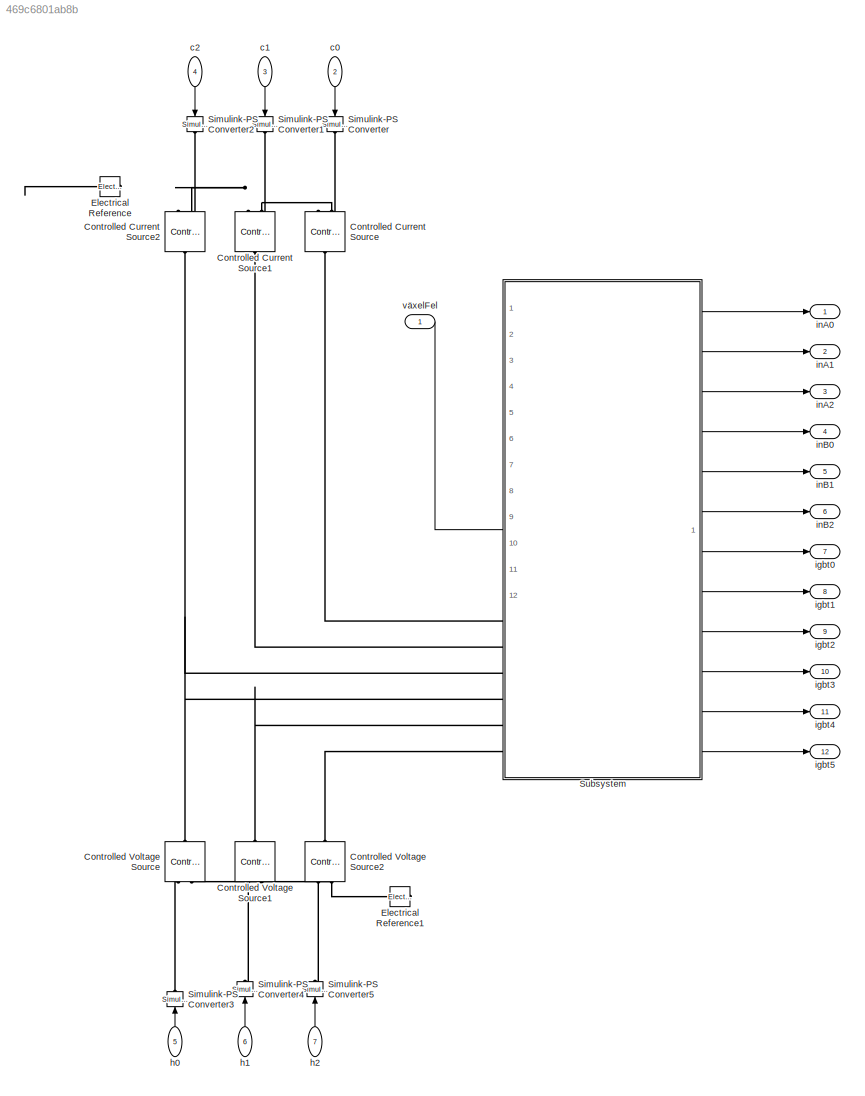
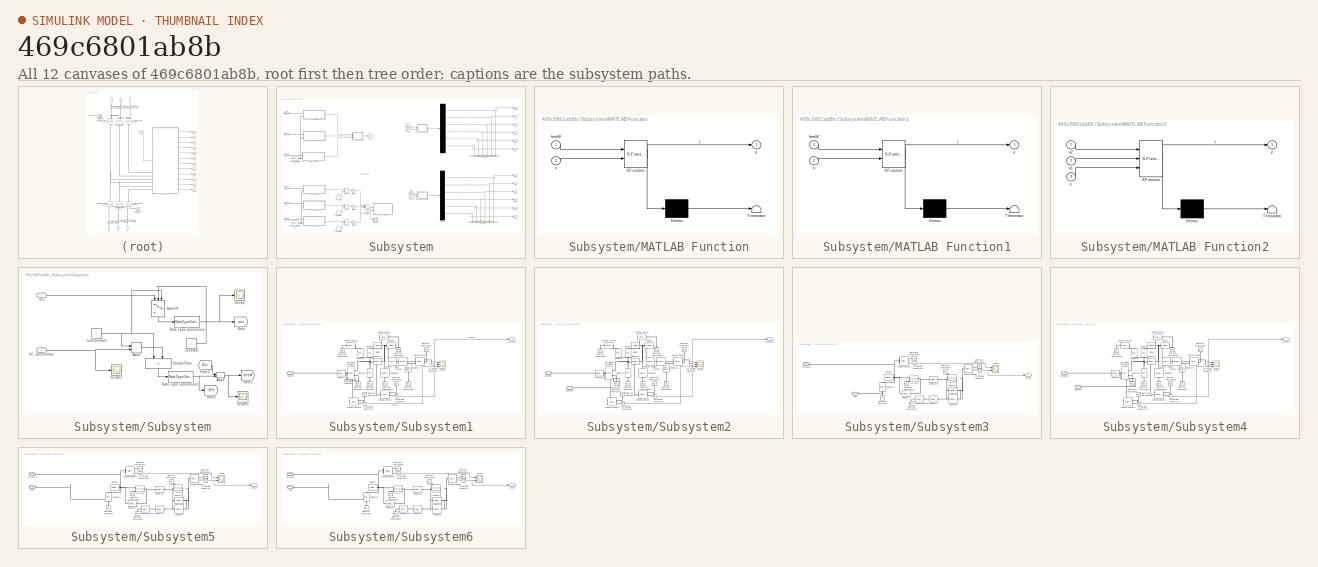
[diagram: thumbnail index - all 12 canvases of the model, root first then tree order]
MODEL slx_469c6801ab8b
KIND model
CONFIG AbsTol = auto
CONFIG EnableMultiTasking = off
CONFIG FixedStep = auto
CONFIG MaxStep = auto
CONFIG MinStep = auto
CONFIG RelTol = 1e-3
CONFIG SampleTimeConstraint = Unconstrained
CONFIG SolverName = VariableStepAuto
CONFIG StartTime = 0.0
CONFIG StopTime = 0.1
WORKSPACE source: mxarray member
WORKSPACE intervall = 300
WORKSPACE intervall2 = 1
WORKSPACE intervall3 = 1
WORKSPACE timeTTT: Simulink.Signal (value not decoded)
BLOCK [Reference] Controlled Current Source  REF=fl_lib/Electrical/Electrical Sources/Controlled Current
Source
  NameLocation = left
  Ports = [0, 0, 0, 0, 0, 1, 2]
  SourceBlock = fl_lib/Electrical/Electrical Sources/Controlled Current\nSource
  SourceProductBaseCode = SS
  SourceType = Controlled Current\nSource
BLOCK [Reference] Controlled Current Source1  REF=fl_lib/Electrical/Electrical Sources/Controlled Current
Source
  NameLocation = left
  Ports = [0, 0, 0, 0, 0, 1, 2]
  SourceBlock = fl_lib/Electrical/Electrical Sources/Controlled Current\nSource
  SourceProductBaseCode = SS
  SourceType = Controlled Current\nSource
BLOCK [Reference] Controlled Current Source2  REF=fl_lib/Electrical/Electrical Sources/Controlled Current
Source
  NameLocation = left
  Ports = [0, 0, 0, 0, 0, 1, 2]
  SourceBlock = fl_lib/Electrical/Electrical Sources/Controlled Current\nSource
  SourceProductBaseCode = SS
  SourceType = Controlled Current\nSource
BLOCK [Reference] Controlled Voltage Source  REF=fl_lib/Electrical/Electrical Sources/Controlled Voltage
Source
  NameLocation = right
  Ports = [0, 0, 0, 0, 0, 1, 2]
  SourceBlock = fl_lib/Electrical/Electrical Sources/Controlled Voltage\nSource
  SourceProductBaseCode = SS
  SourceType = Controlled Voltage\nSource
BLOCK [Reference] Controlled Voltage Source1  REF=fl_lib/Electrical/Electrical Sources/Controlled Voltage
Source
  NameLocation = right
  Ports = [0, 0, 0, 0, 0, 1, 2]
  SourceBlock = fl_lib/Electrical/Electrical Sources/Controlled Voltage\nSource
  SourceProductBaseCode = SS
  SourceType = Controlled Voltage\nSource
BLOCK [Reference] Controlled Voltage Source2  REF=fl_lib/Electrical/Electrical Sources/Controlled Voltage
Source
  NameLocation = right
  Ports = [0, 0, 0, 0, 0, 1, 2]
  SourceBlock = fl_lib/Electrical/Electrical Sources/Controlled Voltage\nSource
  SourceProductBaseCode = SS
  SourceType = Controlled Voltage\nSource
BLOCK [Reference] Electrical Reference  REF=fl_lib/Electrical/Electrical Elements/Electrical Reference
  Ports = [0, 0, 0, 0, 0, 1]
  SourceBlock = fl_lib/Electrical/Electrical Elements/Electrical Reference
  SourceProductBaseCode = SS
  SourceType = Electrical Reference
BLOCK [Reference] Electrical Reference1  REF=fl_lib/Electrical/Electrical Elements/Electrical Reference
  NameLocation = top
  Ports = [0, 0, 0, 0, 0, 1]
  SourceBlock = fl_lib/Electrical/Electrical Elements/Electrical Reference
  SourceProductBaseCode = SS
  SourceType = Electrical Reference
BLOCK [Reference] Simulink-PS Converter  REF=nesl_utility/Simulink-PS
Converter
  NameLocation = left
  Ports = [1, 0, 0, 0, 0, 0, 1]
  SourceBlock = nesl_utility/Simulink-PS\nConverter
  SourceProductBaseCode = SS
  SourceType = Simulink-PS\nConverter
BLOCK [Reference] Simulink-PS Converter1  REF=nesl_utility/Simulink-PS
Converter
  NameLocation = left
  Ports = [1, 0, 0, 0, 0, 0, 1]
  SourceBlock = nesl_utility/Simulink-PS\nConverter
  SourceProductBaseCode = SS
  SourceType = Simulink-PS\nConverter
BLOCK [Reference] Simulink-PS Converter2  REF=nesl_utility/Simulink-PS
Converter
  NameLocation = left
  Ports = [1, 0, 0, 0, 0, 0, 1]
  SourceBlock = nesl_utility/Simulink-PS\nConverter
  SourceProductBaseCode = SS
  SourceType = Simulink-PS\nConverter
BLOCK [Reference] Simulink-PS Converter3  REF=nesl_utility/Simulink-PS
Converter
  NameLocation = right
  Ports = [1, 0, 0, 0, 0, 0, 1]
  SourceBlock = nesl_utility/Simulink-PS\nConverter
  SourceProductBaseCode = SS
  SourceType = Simulink-PS\nConverter
BLOCK [Reference] Simulink-PS Converter4  REF=nesl_utility/Simulink-PS
Converter
  NameLocation = right
  Ports = [1, 0, 0, 0, 0, 0, 1]
  SourceBlock = nesl_utility/Simulink-PS\nConverter
  SourceProductBaseCode = SS
  SourceType = Simulink-PS\nConverter
BLOCK [Reference] Simulink-PS Converter5  REF=nesl_utility/Simulink-PS
Converter
  NameLocation = right
  Ports = [1, 0, 0, 0, 0, 0, 1]
  SourceBlock = nesl_utility/Simulink-PS\nConverter
  SourceProductBaseCode = SS
  SourceType = Simulink-PS\nConverter
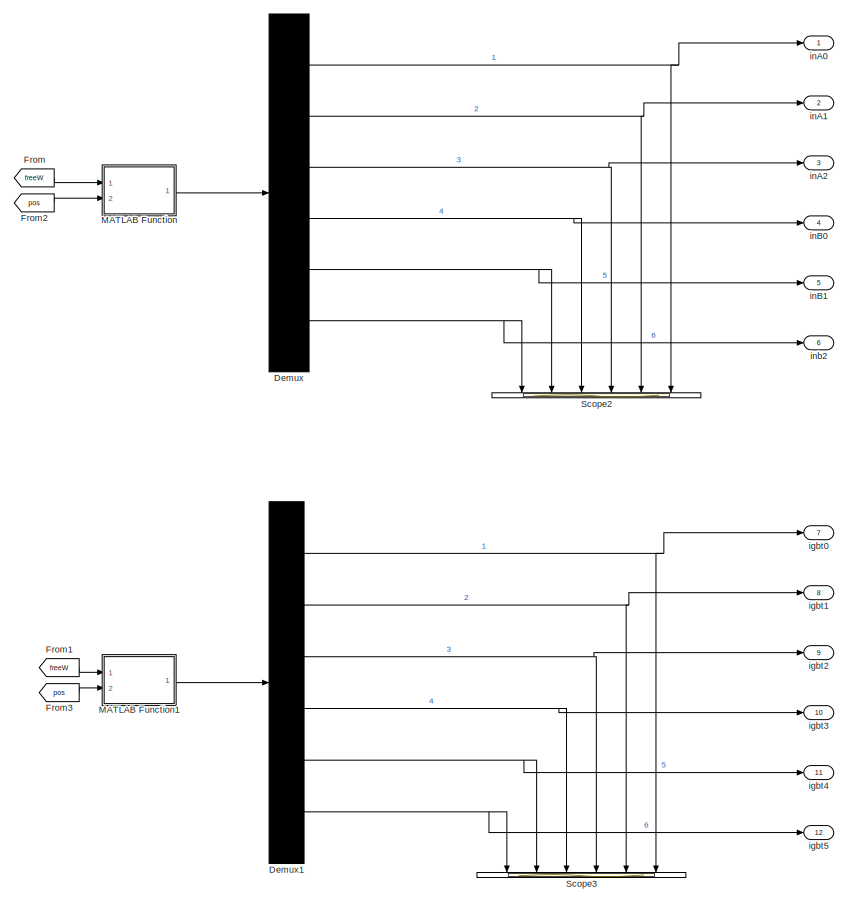
[diagram: Subsystem - part 1/2, right side, full height]
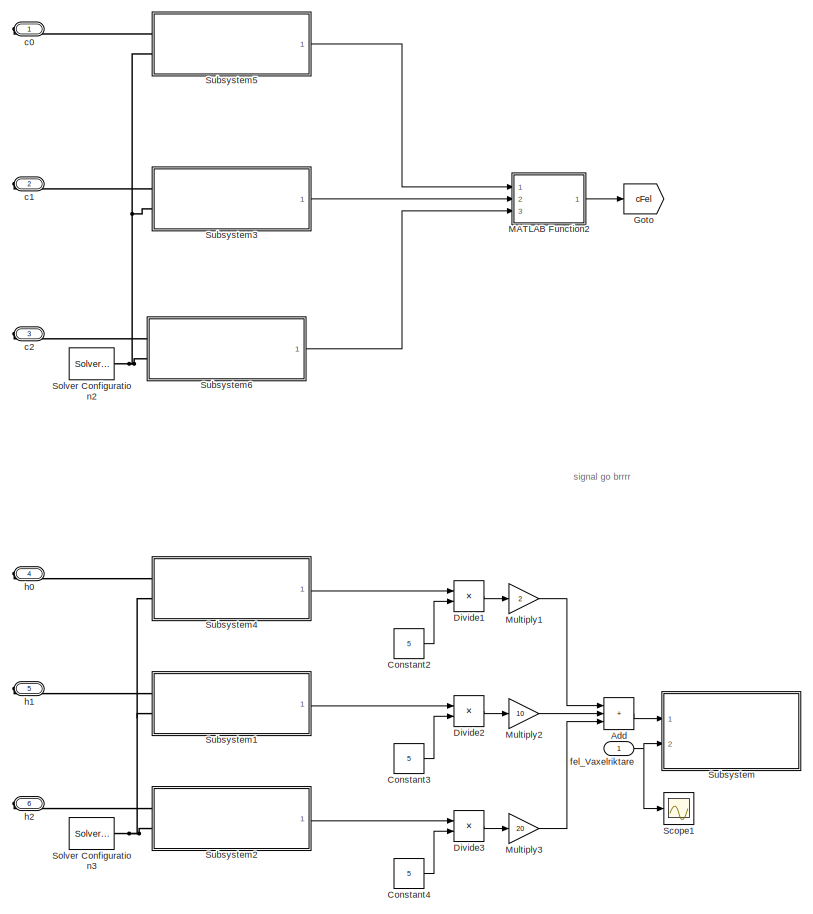
[diagram: Subsystem - part 2/2, left side, full height]
BLOCK [SubSystem] Subsystem
  NameLocation = top
  PortSchema = {"entries":[{"content":{"sides":[{"content":{"connectorIds":["Out1","Out2","Out3","Out4","Out5","Out6","Out7","Out8","Out9","Out10","Out11","Out12"]},"type":"ConnectorPlacement.EquallySpacedRectSide","uuid":"493f0f77-0281-47b8-a20c-27da5d574e1e"},{"content":{"connectorIds":["In1","RConn1","RConn2","RConn3","RConn4","RConn5","RConn6"],"side":"RIGHT"},"type":"ConnectorPlacement.EquallySpacedRectSide...<+518ch>
  Ports = [1, 12, 0, 0, 0, 0, 6]
  RequestExecContextInheritance = off
BLOCK [Sum] Subsystem/Add
  IconShape = rectangular
  Inputs = +++
  Ports = [3, 1]
BLOCK [Constant] Subsystem/Constant2
  Value = 5
BLOCK [Constant] Subsystem/Constant3
  Value = 5
BLOCK [Constant] Subsystem/Constant4
  Value = 5
BLOCK [Demux] Subsystem/Demux
  DisplayOption = none
  Outputs = 6
  Ports = [1, 6]
BLOCK [Demux] Subsystem/Demux1
  DisplayOption = none
  Outputs = 6
  Ports = [1, 6]
BLOCK [Product] Subsystem/Divide1
  Inputs = */
  Ports = [2, 1]
BLOCK [Product] Subsystem/Divide2
  Inputs = */
  Ports = [2, 1]
BLOCK [Product] Subsystem/Divide3
  Inputs = */
  Ports = [2, 1]
BLOCK [From] Subsystem/From
  GotoTag = freeW
  NameLocation = top
  TagVisibility = global
BLOCK [From] Subsystem/From1
  GotoTag = freeW
  TagVisibility = global
BLOCK [From] Subsystem/From2
  GotoTag = pos
  TagVisibility = global
BLOCK [From] Subsystem/From3
  GotoTag = pos
  TagVisibility = global
BLOCK [Goto] Subsystem/Goto
  GotoTag = cFel
  TagVisibility = global
BLOCK [SubSystem] Subsystem/MATLAB Function
  ErrorFcn = Stateflow.Translate.translate
  PermitHierarchicalResolution = ExplicitOnly
  Ports = [2, 1]
  RequestExecContextInheritance = off
  SFBlockType = MATLAB Function
  TreatAsAtomicUnit = on
BLOCK [Demux] Subsystem/MATLAB Function/ Demux 
  Outputs = 1
  Ports = [1, 1]
BLOCK [S-Function] Subsystem/MATLAB Function/ SFunction 
  EnableBusSupport = on
  FunctionName = sf_sfun
  PortCounts = [2 2]
  Ports = [2, 2]
  SFcnIsStateOwnerBlock = off
  SFunctionDeploymentMode = off
  Tag = Stateflow S-Function 2
BLOCK [Terminator] Subsystem/MATLAB Function/ Terminator 
BLOCK [Inport] Subsystem/MATLAB Function/freeW
BLOCK [Inport] Subsystem/MATLAB Function/u
  Port = 2
BLOCK [Outport] Subsystem/MATLAB Function/y
  VectorParamsAs1DForOutWhenUnconnected = off
BLOCK [SubSystem] Subsystem/MATLAB Function1
  ErrorFcn = Stateflow.Translate.translate
  PermitHierarchicalResolution = ExplicitOnly
  Ports = [2, 1]
  RequestExecContextInheritance = off
  SFBlockType = MATLAB Function
  TreatAsAtomicUnit = on
BLOCK [Demux] Subsystem/MATLAB Function1/ Demux 
  Outputs = 1
  Ports = [1, 1]
BLOCK [S-Function] Subsystem/MATLAB Function1/ SFunction 
  EnableBusSupport = on
  FunctionName = sf_sfun
  PortCounts = [2 2]
  Ports = [2, 2]
  SFcnIsStateOwnerBlock = off
  SFunctionDeploymentMode = off
  Tag = Stateflow S-Function 1
BLOCK [Terminator] Subsystem/MATLAB Function1/ Terminator 
BLOCK [Inport] Subsystem/MATLAB Function1/freeW
BLOCK [Inport] Subsystem/MATLAB Function1/u
  Port = 2
BLOCK [Outport] Subsystem/MATLAB Function1/y
  VectorParamsAs1DForOutWhenUnconnected = off
BLOCK [SubSystem] Subsystem/MATLAB Function2
  ErrorFcn = Stateflow.Translate.translate
  PermitHierarchicalResolution = ExplicitOnly
  Ports = [3, 1]
  RequestExecContextInheritance = off
  SFBlockType = MATLAB Function
  TreatAsAtomicUnit = on
BLOCK [Demux] Subsystem/MATLAB Function2/ Demux 
  Outputs = 1
  Ports = [1, 1]
BLOCK [S-Function] Subsystem/MATLAB Function2/ SFunction 
  EnableBusSupport = on
  FunctionName = sf_sfun
  PortCounts = [3 2]
  Ports = [3, 2]
  SFcnIsStateOwnerBlock = off
  SFunctionDeploymentMode = off
  Tag = Stateflow S-Function 3
BLOCK [Terminator] Subsystem/MATLAB Function2/ Terminator 
BLOCK [Inport] Subsystem/MATLAB Function2/u
  Port = 3
BLOCK [Inport] Subsystem/MATLAB Function2/u1
  Port = 2
BLOCK [Inport] Subsystem/MATLAB Function2/u2
BLOCK [Outport] Subsystem/MATLAB Function2/y
BLOCK [Gain] Subsystem/Multiply1
  Gain = 2
BLOCK [Gain] Subsystem/Multiply2
  Gain = 10
BLOCK [Gain] Subsystem/Multiply3
  Gain = 20
BLOCK [Scope] Subsystem/Scope1
  Floating = off
  NumInputPorts = 1
  Ports = [1]
  ScopeSpecificationString = Simulink.scopes.TimeScopeBlockCfg('CurrentConfiguration', extmgr.ConfigurationSet(extmgr.Configuration('Core','General UI',true),extmgr.Configuration('Core','Source UI',true),extmgr.Configuration('Sources','WiredSimulink',true,'DataLoggingVariableName','ScopeData3'),extmgr.Configuration('Visuals','Time Domain',true,'SerializedDisplays',{struct('MinYLimReal','0.9','MaxYLimReal','1.1','YLabelReal','...<+1376ch>
BLOCK [Scope] Subsystem/Scope2
  Floating = off
  NameLocation = left
  NumInputPorts = 6
  Ports = [6]
  ScopeSpecificationString = Simulink.scopes.TimeScopeBlockCfg('CurrentConfiguration', extmgr.ConfigurationSet(extmgr.Configuration('Core','General UI',true),extmgr.Configuration('Core','Source UI',true),extmgr.Configuration('Sources','WiredSimulink',true,'DataLoggingVariableName','ScopeData5'),extmgr.Configuration('Visuals','Time Domain',true,'SerializedDisplays',{struct('MinYLimReal','-1.25','MaxYLimReal','11.25','YLabelRea...<+6165ch>
BLOCK [Scope] Subsystem/Scope3
  Floating = off
  NameLocation = left
  NumInputPorts = 6
  Ports = [6]
  ScopeSpecificationString = Simulink.scopes.TimeScopeBlockCfg('CurrentConfiguration', extmgr.ConfigurationSet(extmgr.Configuration('Core','General UI',true),extmgr.Configuration('Core','Source UI',true),extmgr.Configuration('Sources','WiredSimulink',true,'DataLoggingVariableName','ScopeData1'),extmgr.Configuration('Visuals','Time Domain',true),extmgr.Configuration('Tools','Plot Navigation',true),extmgr.Configuration('Tools',...<+58ch>
BLOCK [Reference] Subsystem/Solver Configuration2  REF=nesl_utility/Solver
Configuration
  Ports = [0, 0, 0, 0, 0, 0, 1]
  SourceBlock = nesl_utility/Solver\nConfiguration
  SourceProductBaseCode = SS
  SourceType = Solver\nConfiguration
BLOCK [Reference] Subsystem/Solver Configuration3  REF=nesl_utility/Solver
Configuration
  Ports = [0, 0, 0, 0, 0, 0, 1]
  SourceBlock = nesl_utility/Solver\nConfiguration
  SourceProductBaseCode = SS
  SourceType = Solver\nConfiguration
BLOCK [SubSystem] Subsystem/Subsystem
  Ports = [2]
  RequestExecContextInheritance = off
BLOCK [Sum] Subsystem/Subsystem/Add1
  IconShape = rectangular
  Ports = [2, 1]
BLOCK [Sum] Subsystem/Subsystem/Add3
  IconShape = rectangular
  Ports = [2, 1]
BLOCK [Constant] Subsystem/Subsystem/Constant
BLOCK [DataTypeConversion] Subsystem/Subsystem/Data Type Conversion
  OutDataTypeStr = int32
  RndMeth = Round
  SaturateOnIntegerOverflow = off
BLOCK [DataTypeConversion] Subsystem/Subsystem/Data Type Conversion1
  OutDataTypeStr = int32
  RndMeth = Round
  SaturateOnIntegerOverflow = off
BLOCK [From] Subsystem/Subsystem/From2
  GotoTag = cFel
  TagVisibility = global
BLOCK [Goto] Subsystem/Subsystem/Goto
  GotoTag = pos
  TagVisibility = global
BLOCK [Goto] Subsystem/Subsystem/Goto1
  GotoTag = freeW
  TagVisibility = global
BLOCK [Goto] Subsystem/Subsystem/Goto2
  GotoTag = vFel
  TagVisibility = global
BLOCK [RelationalOperator] Subsystem/Subsystem/GreaterThan
  InputSameDT = off
  NameLocation = left
  Operator = >
  OutDataTypeStr = boolean
  Ports = [2, 1]
  RndMeth = Simplest
BLOCK [Inport] Subsystem/Subsystem/In1
BLOCK [Scope] Subsystem/Subsystem/Scope
  Floating = off
  NumInputPorts = 1
  Ports = [1]
  ScopeSpecificationString = Simulink.scopes.TimeScopeBlockCfg('CurrentConfiguration', extmgr.ConfigurationSet(extmgr.Configuration('Core','General UI',true),extmgr.Configuration('Core','Source UI',true),extmgr.Configuration('Sources','WiredSimulink',true,'DataLoggingVariableName','ScopeData2'),extmgr.Configuration('Visuals','Time Domain',true,'SerializedDisplays',{struct('MinYLimReal','-0.25','MaxYLimReal','2.25','YLabelReal...<+1361ch>
BLOCK [Scope] Subsystem/Subsystem/Scope1
  Floating = off
  NumInputPorts = 1
  Ports = [1]
  ScopeSpecificationString = Simulink.scopes.TimeScopeBlockCfg('CurrentConfiguration', extmgr.ConfigurationSet(extmgr.Configuration('Core','General UI',true),extmgr.Configuration('Core','Source UI',true),extmgr.Configuration('Sources','WiredSimulink',true,'DataLoggingVariableName','ScopeData1'),extmgr.Configuration('Visuals','Time Domain',true,'SerializedDisplays',{struct('MinYLimReal','-1.00000','MaxYLimReal','1.00000','YLab...<+1363ch>
BLOCK [Scope] Subsystem/Subsystem/Scope2
  Floating = off
  NumInputPorts = 1
  Ports = [1]
  ScopeSpecificationString = Simulink.scopes.TimeScopeBlockCfg('CurrentConfiguration', extmgr.ConfigurationSet(extmgr.Configuration('Core','General UI',true),extmgr.Configuration('Core','Source UI',true),extmgr.Configuration('Sources','WiredSimulink',true,'DataLoggingVariableName','ScopeData2'),extmgr.Configuration('Visuals','Time Domain',true),extmgr.Configuration('Tools','Plot Navigation',true),extmgr.Configuration('Tools',...<+40ch>
BLOCK [Switch] Subsystem/Subsystem/Switch6
  InputSameDT = off
  NameLocation = left
  SaturateOnIntegerOverflow = off
BLOCK [Inport] Subsystem/Subsystem/fel_Vaxelriktare
  Port = 2
BLOCK [Constant] Subsystem/Subsystem/nullConstant
  Value = 0
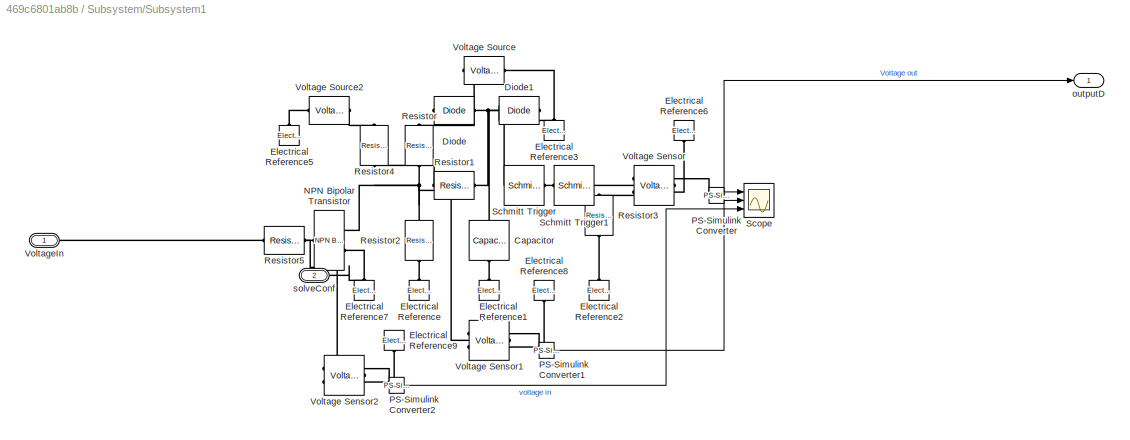
BLOCK [SubSystem] Subsystem/Subsystem1
  Ports = [0, 1, 0, 0, 0, 2]
  RequestExecContextInheritance = off
BLOCK [Reference] Subsystem/Subsystem1/Capacitor  REF=fl_lib/Electrical/Electrical Elements/Capacitor
  NameLocation = left
  Ports = [0, 0, 0, 0, 0, 1, 1]
  SourceBlock = fl_lib/Electrical/Electrical Elements/Capacitor
  SourceProductBaseCode = SS
  SourceType = Capacitor
BLOCK [Reference] Subsystem/Subsystem1/Diode  REF=ee_lib/Semiconductors &
Converters/Diode
  NameLocation = top
  Ports = [0, 0, 0, 0, 0, 1, 1]
  SourceBlock = ee_lib/Semiconductors &\nConverters/Diode
  SourceProductBaseCode = PS
  SourceType = Diode
BLOCK [Reference] Subsystem/Subsystem1/Diode1  REF=ee_lib/Semiconductors &
Converters/Diode
  NameLocation = top
  Ports = [0, 0, 0, 0, 0, 1, 1]
  SourceBlock = ee_lib/Semiconductors &\nConverters/Diode
  SourceProductBaseCode = PS
  SourceType = Diode
BLOCK [Reference] Subsystem/Subsystem1/Electrical Reference  REF=fl_lib/Electrical/Electrical Elements/Electrical Reference
  NameLocation = right
  Ports = [0, 0, 0, 0, 0, 1]
  SourceBlock = fl_lib/Electrical/Electrical Elements/Electrical Reference
  SourceProductBaseCode = SS
  SourceType = Electrical Reference
BLOCK [Reference] Subsystem/Subsystem1/Electrical Reference1  REF=fl_lib/Electrical/Electrical Elements/Electrical Reference
  NameLocation = right
  Ports = [0, 0, 0, 0, 0, 1]
  SourceBlock = fl_lib/Electrical/Electrical Elements/Electrical Reference
  SourceProductBaseCode = SS
  SourceType = Electrical Reference
BLOCK [Reference] Subsystem/Subsystem1/Electrical Reference2  REF=fl_lib/Electrical/Electrical Elements/Electrical Reference
  NameLocation = right
  Ports = [0, 0, 0, 0, 0, 1]
  SourceBlock = fl_lib/Electrical/Electrical Elements/Electrical Reference
  SourceProductBaseCode = SS
  SourceType = Electrical Reference
BLOCK [Reference] Subsystem/Subsystem1/Electrical Reference3  REF=fl_lib/Electrical/Electrical Elements/Electrical Reference
  NameLocation = right
  Ports = [0, 0, 0, 0, 0, 1]
  SourceBlock = fl_lib/Electrical/Electrical Elements/Electrical Reference
  SourceProductBaseCode = SS
  SourceType = Electrical Reference
BLOCK [Reference] Subsystem/Subsystem1/Electrical Reference5  REF=fl_lib/Electrical/Electrical Elements/Electrical Reference
  NameLocation = right
  Ports = [0, 0, 0, 0, 0, 1]
  SourceBlock = fl_lib/Electrical/Electrical Elements/Electrical Reference
  SourceProductBaseCode = SS
  SourceType = Electrical Reference
BLOCK [Reference] Subsystem/Subsystem1/Electrical Reference6  REF=fl_lib/Electrical/Electrical Elements/Electrical Reference
  NameLocation = left
  Ports = [0, 0, 0, 0, 0, 1]
  SourceBlock = fl_lib/Electrical/Electrical Elements/Electrical Reference
  SourceProductBaseCode = SS
  SourceType = Electrical Reference
BLOCK [Reference] Subsystem/Subsystem1/Electrical Reference7  REF=fl_lib/Electrical/Electrical Elements/Electrical Reference
  NameLocation = right
  Ports = [0, 0, 0, 0, 0, 1]
  SourceBlock = fl_lib/Electrical/Electrical Elements/Electrical Reference
  SourceProductBaseCode = SS
  SourceType = Electrical Reference
BLOCK [Reference] Subsystem/Subsystem1/Electrical Reference8  REF=fl_lib/Electrical/Electrical Elements/Electrical Reference
  NameLocation = left
  Ports = [0, 0, 0, 0, 0, 1]
  SourceBlock = fl_lib/Electrical/Electrical Elements/Electrical Reference
  SourceProductBaseCode = SS
  SourceType = Electrical Reference
BLOCK [Reference] Subsystem/Subsystem1/Electrical Reference9  REF=fl_lib/Electrical/Electrical Elements/Electrical Reference
  NameLocation = left
  Ports = [0, 0, 0, 0, 0, 1]
  SourceBlock = fl_lib/Electrical/Electrical Elements/Electrical Reference
  SourceProductBaseCode = SS
  SourceType = Electrical Reference
BLOCK [Reference] Subsystem/Subsystem1/NPN Bipolar Transistor  REF=ee_lib/Semiconductors &
Converters/NPN Bipolar
Transistor
  Ports = [0, 0, 0, 0, 0, 1, 2]
  SourceBlock = ee_lib/Semiconductors &\nConverters/NPN Bipolar\nTransistor
  SourceProductBaseCode = PS
  SourceType = NPN Bipolar\nTransistor
BLOCK [Reference] Subsystem/Subsystem1/PS-Simulink Converter  REF=nesl_utility/PS-Simulink
Converter
  Ports = [0, 1, 0, 0, 0, 1]
  SourceBlock = nesl_utility/PS-Simulink\nConverter
  SourceProductBaseCode = SS
  SourceType = PS-Simulink\nConverter
BLOCK [Reference] Subsystem/Subsystem1/PS-Simulink Converter1  REF=nesl_utility/PS-Simulink
Converter
  Ports = [0, 1, 0, 0, 0, 1]
  SourceBlock = nesl_utility/PS-Simulink\nConverter
  SourceProductBaseCode = SS
  SourceType = PS-Simulink\nConverter
BLOCK [Reference] Subsystem/Subsystem1/PS-Simulink Converter2  REF=nesl_utility/PS-Simulink
Converter
  Ports = [0, 1, 0, 0, 0, 1]
  SourceBlock = nesl_utility/PS-Simulink\nConverter
  SourceProductBaseCode = SS
  SourceType = PS-Simulink\nConverter
BLOCK [Reference] Subsystem/Subsystem1/Resistor  REF=fl_lib/Electrical/Electrical Elements/Resistor
  NameLocation = left
  Ports = [0, 0, 0, 0, 0, 1, 1]
  SourceBlock = fl_lib/Electrical/Electrical Elements/Resistor
  SourceProductBaseCode = SS
  SourceType = Resistor
BLOCK [Reference] Subsystem/Subsystem1/Resistor1  REF=fl_lib/Electrical/Electrical Elements/Resistor
  Ports = [0, 0, 0, 0, 0, 1, 1]
  SourceBlock = fl_lib/Electrical/Electrical Elements/Resistor
  SourceProductBaseCode = SS
  SourceType = Resistor
BLOCK [Reference] Subsystem/Subsystem1/Resistor2  REF=fl_lib/Electrical/Electrical Elements/Resistor
  NameLocation = left
  Ports = [0, 0, 0, 0, 0, 1, 1]
  SourceBlock = fl_lib/Electrical/Electrical Elements/Resistor
  SourceProductBaseCode = SS
  SourceType = Resistor
BLOCK [Reference] Subsystem/Subsystem1/Resistor3  REF=fl_lib/Electrical/Electrical Elements/Resistor
  NameLocation = left
  Ports = [0, 0, 0, 0, 0, 1, 1]
  SourceBlock = fl_lib/Electrical/Electrical Elements/Resistor
  SourceProductBaseCode = SS
  SourceType = Resistor
BLOCK [Reference] Subsystem/Subsystem1/Resistor4  REF=fl_lib/Electrical/Electrical Elements/Resistor
  NameLocation = left
  Ports = [0, 0, 0, 0, 0, 1, 1]
  SourceBlock = fl_lib/Electrical/Electrical Elements/Resistor
  SourceProductBaseCode = SS
  SourceType = Resistor
BLOCK [Reference] Subsystem/Subsystem1/Resistor5  REF=fl_lib/Electrical/Electrical Elements/Resistor
  Ports = [0, 0, 0, 0, 0, 1, 1]
  SourceBlock = fl_lib/Electrical/Electrical Elements/Resistor
  SourceProductBaseCode = SS
  SourceType = Resistor
BLOCK [Reference] Subsystem/Subsystem1/Schmitt Trigger  REF=ee_lib/Integrated Circuits/Logic/Schmitt Trigger
  Ports = [0, 0, 0, 0, 0, 1, 1]
  SourceBlock = ee_lib/Integrated Circuits/Logic/Schmitt Trigger
  SourceProductBaseCode = PS
  SourceType = Schmitt Trigger
BLOCK [Reference] Subsystem/Subsystem1/Schmitt Trigger1  REF=ee_lib/Integrated Circuits/Logic/Schmitt Trigger
  Ports = [0, 0, 0, 0, 0, 1, 1]
  SourceBlock = ee_lib/Integrated Circuits/Logic/Schmitt Trigger
  SourceProductBaseCode = PS
  SourceType = Schmitt Trigger
BLOCK [Scope] Subsystem/Subsystem1/Scope
  Floating = off
  NumInputPorts = 3
  Ports = [3]
  ScopeSpecificationString = Simulink.scopes.TimeScopeBlockCfg('CurrentConfiguration', extmgr.ConfigurationSet(extmgr.Configuration('Core','General UI',true),extmgr.Configuration('Core','Source UI',true),extmgr.Configuration('Sources','WiredSimulink',true,'DataLoggingVariableName','ScopeData1'),extmgr.Configuration('Visuals','Time Domain',true,'SerializedDisplays',{struct('MinYLimReal','-1.00000','MaxYLimReal','1.00000','YLab...<+2771ch>
BLOCK [Reference] Subsystem/Subsystem1/Voltage Sensor  REF=fl_lib/Electrical/Electrical Sensors/Voltage Sensor
  NameLocation = top
  Ports = [0, 0, 0, 0, 0, 1, 2]
  SourceBlock = fl_lib/Electrical/Electrical Sensors/Voltage Sensor
  SourceProductBaseCode = SS
  SourceType = Voltage Sensor
BLOCK [Reference] Subsystem/Subsystem1/Voltage Sensor1  REF=fl_lib/Electrical/Electrical Sensors/Voltage Sensor
  NameLocation = top
  Ports = [0, 0, 0, 0, 0, 1, 2]
  SourceBlock = fl_lib/Electrical/Electrical Sensors/Voltage Sensor
  SourceProductBaseCode = SS
  SourceType = Voltage Sensor
BLOCK [Reference] Subsystem/Subsystem1/Voltage Sensor2  REF=fl_lib/Electrical/Electrical Sensors/Voltage Sensor
  NameLocation = top
  Ports = [0, 0, 0, 0, 0, 1, 2]
  SourceBlock = fl_lib/Electrical/Electrical Sensors/Voltage Sensor
  SourceProductBaseCode = SS
  SourceType = Voltage Sensor
BLOCK [Reference] Subsystem/Subsystem1/Voltage Source  REF=ee_lib/Sources/Voltage Source
  NameLocation = top
  Ports = [0, 0, 0, 0, 0, 1, 1]
  SourceBlock = ee_lib/Sources/Voltage Source
  SourceProductBaseCode = PS
  SourceType = Voltage Source
BLOCK [Reference] Subsystem/Subsystem1/Voltage Source2  REF=ee_lib/Sources/Voltage Source
  Ports = [0, 0, 0, 0, 0, 1, 1]
  SourceBlock = ee_lib/Sources/Voltage Source
  SourceProductBaseCode = PS
  SourceType = Voltage Source
BLOCK [PMIOPort] Subsystem/Subsystem1/VoltageIn
  Side = Left
BLOCK [Outport] Subsystem/Subsystem1/outputD
BLOCK [PMIOPort] Subsystem/Subsystem1/solveConf
  Port = 2
  Side = Left
BLOCK [SubSystem] Subsystem/Subsystem2
  Ports = [0, 1, 0, 0, 0, 2]
  RequestExecContextInheritance = off
BLOCK [Reference] Subsystem/Subsystem2/Capacitor  REF=fl_lib/Electrical/Electrical Elements/Capacitor
  NameLocation = left
  Ports = [0, 0, 0, 0, 0, 1, 1]
  SourceBlock = fl_lib/Electrical/Electrical Elements/Capacitor
  SourceProductBaseCode = SS
  SourceType = Capacitor
BLOCK [Reference] Subsystem/Subsystem2/Diode  REF=ee_lib/Semiconductors &
Converters/Diode
  NameLocation = top
  Ports = [0, 0, 0, 0, 0, 1, 1]
  SourceBlock = ee_lib/Semiconductors &\nConverters/Diode
  SourceProductBaseCode = PS
  SourceType = Diode
BLOCK [Reference] Subsystem/Subsystem2/Diode1  REF=ee_lib/Semiconductors &
Converters/Diode
  NameLocation = top
  Ports = [0, 0, 0, 0, 0, 1, 1]
  SourceBlock = ee_lib/Semiconductors &\nConverters/Diode
  SourceProductBaseCode = PS
  SourceType = Diode
BLOCK [Reference] Subsystem/Subsystem2/Electrical Reference  REF=fl_lib/Electrical/Electrical Elements/Electrical Reference
  NameLocation = right
  Ports = [0, 0, 0, 0, 0, 1]
  SourceBlock = fl_lib/Electrical/Electrical Elements/Electrical Reference
  SourceProductBaseCode = SS
  SourceType = Electrical Reference
BLOCK [Reference] Subsystem/Subsystem2/Electrical Reference1  REF=fl_lib/Electrical/Electrical Elements/Electrical Reference
  NameLocation = right
  Ports = [0, 0, 0, 0, 0, 1]
  SourceBlock = fl_lib/Electrical/Electrical Elements/Electrical Reference
  SourceProductBaseCode = SS
  SourceType = Electrical Reference
BLOCK [Reference] Subsystem/Subsystem2/Electrical Reference2  REF=fl_lib/Electrical/Electrical Elements/Electrical Reference
  NameLocation = right
  Ports = [0, 0, 0, 0, 0, 1]
  SourceBlock = fl_lib/Electrical/Electrical Elements/Electrical Reference
  SourceProductBaseCode = SS
  SourceType = Electrical Reference
BLOCK [Reference] Subsystem/Subsystem2/Electrical Reference3  REF=fl_lib/Electrical/Electrical Elements/Electrical Reference
  NameLocation = right
  Ports = [0, 0, 0, 0, 0, 1]
  SourceBlock = fl_lib/Electrical/Electrical Elements/Electrical Reference
  SourceProductBaseCode = SS
  SourceType = Electrical Reference
BLOCK [Reference] Subsystem/Subsystem2/Electrical Reference5  REF=fl_lib/Electrical/Electrical Elements/Electrical Reference
  NameLocation = right
  Ports = [0, 0, 0, 0, 0, 1]
  SourceBlock = fl_lib/Electrical/Electrical Elements/Electrical Reference
  SourceProductBaseCode = SS
  SourceType = Electrical Reference
BLOCK [Reference] Subsystem/Subsystem2/Electrical Reference6  REF=fl_lib/Electrical/Electrical Elements/Electrical Reference
  NameLocation = left
  Ports = [0, 0, 0, 0, 0, 1]
  SourceBlock = fl_lib/Electrical/Electrical Elements/Electrical Reference
  SourceProductBaseCode = SS
  SourceType = Electrical Reference
BLOCK [Reference] Subsystem/Subsystem2/Electrical Reference7  REF=fl_lib/Electrical/Electrical Elements/Electrical Reference
  NameLocation = right
  Ports = [0, 0, 0, 0, 0, 1]
  SourceBlock = fl_lib/Electrical/Electrical Elements/Electrical Reference
  SourceProductBaseCode = SS
  SourceType = Electrical Reference
BLOCK [Reference] Subsystem/Subsystem2/Electrical Reference8  REF=fl_lib/Electrical/Electrical Elements/Electrical Reference
  NameLocation = left
  Ports = [0, 0, 0, 0, 0, 1]
  SourceBlock = fl_lib/Electrical/Electrical Elements/Electrical Reference
  SourceProductBaseCode = SS
  SourceType = Electrical Reference
BLOCK [Reference] Subsystem/Subsystem2/Electrical Reference9  REF=fl_lib/Electrical/Electrical Elements/Electrical Reference
  NameLocation = left
  Ports = [0, 0, 0, 0, 0, 1]
  SourceBlock = fl_lib/Electrical/Electrical Elements/Electrical Reference
  SourceProductBaseCode = SS
  SourceType = Electrical Reference
BLOCK [Reference] Subsystem/Subsystem2/NPN Bipolar Transistor  REF=ee_lib/Semiconductors &
Converters/NPN Bipolar
Transistor
  Ports = [0, 0, 0, 0, 0, 1, 2]
  SourceBlock = ee_lib/Semiconductors &\nConverters/NPN Bipolar\nTransistor
  SourceProductBaseCode = PS
  SourceType = NPN Bipolar\nTransistor
BLOCK [Reference] Subsystem/Subsystem2/PS-Simulink Converter  REF=nesl_utility/PS-Simulink
Converter
  Ports = [0, 1, 0, 0, 0, 1]
  SourceBlock = nesl_utility/PS-Simulink\nConverter
  SourceProductBaseCode = SS
  SourceType = PS-Simulink\nConverter
BLOCK [Reference] Subsystem/Subsystem2/PS-Simulink Converter1  REF=nesl_utility/PS-Simulink
Converter
  Ports = [0, 1, 0, 0, 0, 1]
  SourceBlock = nesl_utility/PS-Simulink\nConverter
  SourceProductBaseCode = SS
  SourceType = PS-Simulink\nConverter
BLOCK [Reference] Subsystem/Subsystem2/PS-Simulink Converter2  REF=nesl_utility/PS-Simulink
Converter
  Ports = [0, 1, 0, 0, 0, 1]
  SourceBlock = nesl_utility/PS-Simulink\nConverter
  SourceProductBaseCode = SS
  SourceType = PS-Simulink\nConverter
BLOCK [Reference] Subsystem/Subsystem2/Resistor  REF=fl_lib/Electrical/Electrical Elements/Resistor
  NameLocation = left
  Ports = [0, 0, 0, 0, 0, 1, 1]
  SourceBlock = fl_lib/Electrical/Electrical Elements/Resistor
  SourceProductBaseCode = SS
  SourceType = Resistor
BLOCK [Reference] Subsystem/Subsystem2/Resistor1  REF=fl_lib/Electrical/Electrical Elements/Resistor
  Ports = [0, 0, 0, 0, 0, 1, 1]
  SourceBlock = fl_lib/Electrical/Electrical Elements/Resistor
  SourceProductBaseCode = SS
  SourceType = Resistor
BLOCK [Reference] Subsystem/Subsystem2/Resistor2  REF=fl_lib/Electrical/Electrical Elements/Resistor
  NameLocation = left
  Ports = [0, 0, 0, 0, 0, 1, 1]
  SourceBlock = fl_lib/Electrical/Electrical Elements/Resistor
  SourceProductBaseCode = SS
  SourceType = Resistor
BLOCK [Reference] Subsystem/Subsystem2/Resistor3  REF=fl_lib/Electrical/Electrical Elements/Resistor
  NameLocation = left
  Ports = [0, 0, 0, 0, 0, 1, 1]
  SourceBlock = fl_lib/Electrical/Electrical Elements/Resistor
  SourceProductBaseCode = SS
  SourceType = Resistor
BLOCK [Reference] Subsystem/Subsystem2/Resistor4  REF=fl_lib/Electrical/Electrical Elements/Resistor
  NameLocation = left
  Ports = [0, 0, 0, 0, 0, 1, 1]
  SourceBlock = fl_lib/Electrical/Electrical Elements/Resistor
  SourceProductBaseCode = SS
  SourceType = Resistor
BLOCK [Reference] Subsystem/Subsystem2/Resistor5  REF=fl_lib/Electrical/Electrical Elements/Resistor
  Ports = [0, 0, 0, 0, 0, 1, 1]
  SourceBlock = fl_lib/Electrical/Electrical Elements/Resistor
  SourceProductBaseCode = SS
  SourceType = Resistor
BLOCK [Reference] Subsystem/Subsystem2/Schmitt Trigger  REF=ee_lib/Integrated Circuits/Logic/Schmitt Trigger
  Ports = [0, 0, 0, 0, 0, 1, 1]
  SourceBlock = ee_lib/Integrated Circuits/Logic/Schmitt Trigger
  SourceProductBaseCode = PS
  SourceType = Schmitt Trigger
BLOCK [Reference] Subsystem/Subsystem2/Schmitt Trigger1  REF=ee_lib/Integrated Circuits/Logic/Schmitt Trigger
  Ports = [0, 0, 0, 0, 0, 1, 1]
  SourceBlock = ee_lib/Integrated Circuits/Logic/Schmitt Trigger
  SourceProductBaseCode = PS
  SourceType = Schmitt Trigger
BLOCK [Scope] Subsystem/Subsystem2/Scope
  Floating = off
  NumInputPorts = 3
  Ports = [3]
  ScopeSpecificationString = Simulink.scopes.TimeScopeBlockCfg('CurrentConfiguration', extmgr.ConfigurationSet(extmgr.Configuration('Core','General UI',true),extmgr.Configuration('Core','Source UI',true),extmgr.Configuration('Sources','WiredSimulink',true,'DataLoggingVariableName','ScopeData1'),extmgr.Configuration('Visuals','Time Domain',true,'SerializedDisplays',{struct('MinYLimReal','-6.22857','MaxYLimReal','6.23377','YLab...<+1459ch>
BLOCK [Reference] Subsystem/Subsystem2/Voltage Sensor  REF=fl_lib/Electrical/Electrical Sensors/Voltage Sensor
  NameLocation = top
  Ports = [0, 0, 0, 0, 0, 1, 2]
  SourceBlock = fl_lib/Electrical/Electrical Sensors/Voltage Sensor
  SourceProductBaseCode = SS
  SourceType = Voltage Sensor
BLOCK [Reference] Subsystem/Subsystem2/Voltage Sensor1  REF=fl_lib/Electrical/Electrical Sensors/Voltage Sensor
  NameLocation = top
  Ports = [0, 0, 0, 0, 0, 1, 2]
  SourceBlock = fl_lib/Electrical/Electrical Sensors/Voltage Sensor
  SourceProductBaseCode = SS
  SourceType = Voltage Sensor
BLOCK [Reference] Subsystem/Subsystem2/Voltage Sensor2  REF=fl_lib/Electrical/Electrical Sensors/Voltage Sensor
  NameLocation = top
  Ports = [0, 0, 0, 0, 0, 1, 2]
  SourceBlock = fl_lib/Electrical/Electrical Sensors/Voltage Sensor
  SourceProductBaseCode = SS
  SourceType = Voltage Sensor
BLOCK [Reference] Subsystem/Subsystem2/Voltage Source  REF=ee_lib/Sources/Voltage Source
  NameLocation = top
  Ports = [0, 0, 0, 0, 0, 1, 1]
  SourceBlock = ee_lib/Sources/Voltage Source
  SourceProductBaseCode = PS
  SourceType = Voltage Source
BLOCK [Reference] Subsystem/Subsystem2/Voltage Source2  REF=ee_lib/Sources/Voltage Source
  Ports = [0, 0, 0, 0, 0, 1, 1]
  SourceBlock = ee_lib/Sources/Voltage Source
  SourceProductBaseCode = PS
  SourceType = Voltage Source
BLOCK [PMIOPort] Subsystem/Subsystem2/VoltageIn
  Side = Left
BLOCK [Outport] Subsystem/Subsystem2/outputD
BLOCK [PMIOPort] Subsystem/Subsystem2/solveConf
  Port = 2
  Side = Left
BLOCK [SubSystem] Subsystem/Subsystem3
  Ports = [0, 1, 0, 0, 0, 2]
  RequestExecContextInheritance = off
BLOCK [Reference] Subsystem/Subsystem3/Capacitor  REF=fl_lib/Electrical/Electrical Elements/Capacitor
  Ports = [0, 0, 0, 0, 0, 1, 1]
  SourceBlock = fl_lib/Electrical/Electrical Elements/Capacitor
  SourceProductBaseCode = SS
  SourceType = Capacitor
BLOCK [Reference] Subsystem/Subsystem3/Electrical Reference  REF=fl_lib/Electrical/Electrical Elements/Electrical Reference
  NameLocation = right
  Ports = [0, 0, 0, 0, 0, 1]
  SourceBlock = fl_lib/Electrical/Electrical Elements/Electrical Reference
  SourceProductBaseCode = SS
  SourceType = Electrical Reference
BLOCK [Reference] Subsystem/Subsystem3/Electrical Reference1  REF=fl_lib/Electrical/Electrical Elements/Electrical Reference
  NameLocation = right
  Ports = [0, 0, 0, 0, 0, 1]
  SourceBlock = fl_lib/Electrical/Electrical Elements/Electrical Reference
  SourceProductBaseCode = SS
  SourceType = Electrical Reference
BLOCK [Reference] Subsystem/Subsystem3/Electrical Reference2  REF=fl_lib/Electrical/Electrical Elements/Electrical Reference
  NameLocation = left
  Ports = [0, 0, 0, 0, 0, 1]
  SourceBlock = fl_lib/Electrical/Electrical Elements/Electrical Reference
  SourceProductBaseCode = SS
  SourceType = Electrical Reference
BLOCK [Reference] Subsystem/Subsystem3/Electrical Reference3  REF=fl_lib/Electrical/Electrical Elements/Electrical Reference
  NameLocation = right
  Ports = [0, 0, 0, 0, 0, 1]
  SourceBlock = fl_lib/Electrical/Electrical Elements/Electrical Reference
  SourceProductBaseCode = SS
  SourceType = Electrical Reference
BLOCK [Reference] Subsystem/Subsystem3/Electrical Reference4  REF=fl_lib/Electrical/Electrical Elements/Electrical Reference
  NameLocation = top
  Ports = [0, 0, 0, 0, 0, 1]
  SourceBlock = fl_lib/Electrical/Electrical Elements/Electrical Reference
  SourceProductBaseCode = SS
  SourceType = Electrical Reference
BLOCK [Reference] Subsystem/Subsystem3/Electrical Reference6  REF=fl_lib/Electrical/Electrical Elements/Electrical Reference
  NameLocation = top
  Ports = [0, 0, 0, 0, 0, 1]
  SourceBlock = fl_lib/Electrical/Electrical Elements/Electrical Reference
  SourceProductBaseCode = SS
  SourceType = Electrical Reference
BLOCK [Reference] Subsystem/Subsystem3/Op-Amp  REF=fl_lib/Electrical/Electrical Elements/Op-Amp
  Ports = [0, 0, 0, 0, 0, 2, 1]
  SourceBlock = fl_lib/Electrical/Electrical Elements/Op-Amp
  SourceProductBaseCode = SS
  SourceType = Op-Amp
BLOCK [Reference] Subsystem/Subsystem3/Op-Amp1  REF=fl_lib/Electrical/Electrical Elements/Op-Amp
  Ports = [0, 0, 0, 0, 0, 2, 1]
  SourceBlock = fl_lib/Electrical/Electrical Elements/Op-Amp
  SourceProductBaseCode = SS
  SourceType = Op-Amp
BLOCK [Reference] Subsystem/Subsystem3/PS-Simulink Converter  REF=nesl_utility/PS-Simulink
Converter
  Ports = [0, 1, 0, 0, 0, 1]
  SourceBlock = nesl_utility/PS-Simulink\nConverter
  SourceProductBaseCode = SS
  SourceType = PS-Simulink\nConverter
BLOCK [Reference] Subsystem/Subsystem3/PS-Simulink Converter2  REF=nesl_utility/PS-Simulink
Converter
  Ports = [0, 1, 0, 0, 0, 1]
  SourceBlock = nesl_utility/PS-Simulink\nConverter
  SourceProductBaseCode = SS
  SourceType = PS-Simulink\nConverter
BLOCK [Reference] Subsystem/Subsystem3/Resistor  REF=fl_lib/Electrical/Electrical Elements/Resistor
  Ports = [0, 0, 0, 0, 0, 1, 1]
  SourceBlock = fl_lib/Electrical/Electrical Elements/Resistor
  SourceProductBaseCode = SS
  SourceType = Resistor
BLOCK [Reference] Subsystem/Subsystem3/Resistor1  REF=fl_lib/Electrical/Electrical Elements/Resistor
  NameLocation = left
  Ports = [0, 0, 0, 0, 0, 1, 1]
  SourceBlock = fl_lib/Electrical/Electrical Elements/Resistor
  SourceProductBaseCode = SS
  SourceType = Resistor
BLOCK [Reference] Subsystem/Subsystem3/Resistor2  REF=fl_lib/Electrical/Electrical Elements/Resistor
  Ports = [0, 0, 0, 0, 0, 1, 1]
  SourceBlock = fl_lib/Electrical/Electrical Elements/Resistor
  SourceProductBaseCode = SS
  SourceType = Resistor
BLOCK [Reference] Subsystem/Subsystem3/Resistor3  REF=fl_lib/Electrical/Electrical Elements/Resistor
  Ports = [0, 0, 0, 0, 0, 1, 1]
  SourceBlock = fl_lib/Electrical/Electrical Elements/Resistor
  SourceProductBaseCode = SS
  SourceType = Resistor
BLOCK [Reference] Subsystem/Subsystem3/Resistor4  REF=fl_lib/Electrical/Electrical Elements/Resistor
  Ports = [0, 0, 0, 0, 0, 1, 1]
  SourceBlock = fl_lib/Electrical/Electrical Elements/Resistor
  SourceProductBaseCode = SS
  SourceType = Resistor
BLOCK [Reference] Subsystem/Subsystem3/Resistor5  REF=fl_lib/Electrical/Electrical Elements/Resistor
  Ports = [0, 0, 0, 0, 0, 1, 1]
  SourceBlock = fl_lib/Electrical/Electrical Elements/Resistor
  SourceProductBaseCode = SS
  SourceType = Resistor
BLOCK [Scope] Subsystem/Subsystem3/Scope
  Floating = off
  NumInputPorts = 2
  Ports = [2]
  ScopeSpecificationString = Simulink.scopes.TimeScopeBlockCfg('CurrentConfiguration', extmgr.ConfigurationSet(extmgr.Configuration('Core','General UI',true),extmgr.Configuration('Core','Source UI',true),extmgr.Configuration('Sources','WiredSimulink',true),extmgr.Configuration('Visuals','Time Domain',true,'SerializedDisplays',{struct('MinYLimReal','-7.45527','MaxYLimReal','7.45527','YLabelReal','','MinYLimMag','0.00000','MaxY...<+2074ch>
BLOCK [Reference] Subsystem/Subsystem3/Voltage Sensor  REF=fl_lib/Electrical/Electrical Sensors/Voltage Sensor
  NameLocation = top
  Ports = [0, 0, 0, 0, 0, 1, 2]
  SourceBlock = fl_lib/Electrical/Electrical Sensors/Voltage Sensor
  SourceProductBaseCode = SS
  SourceType = Voltage Sensor
BLOCK [Reference] Subsystem/Subsystem3/Voltage Sensor2  REF=fl_lib/Electrical/Electrical Sensors/Voltage Sensor
  NameLocation = top
  Ports = [0, 0, 0, 0, 0, 1, 2]
  SourceBlock = fl_lib/Electrical/Electrical Sensors/Voltage Sensor
  SourceProductBaseCode = SS
  SourceType = Voltage Sensor
BLOCK [Reference] Subsystem/Subsystem3/Voltage Source  REF=ee_lib/Sources/Voltage Source
  Ports = [0, 0, 0, 0, 0, 1, 1]
  SourceBlock = ee_lib/Sources/Voltage Source
  SourceProductBaseCode = PS
  SourceType = Voltage Source
BLOCK [PMIOPort] Subsystem/Subsystem3/currentIn
  Side = Left
BLOCK [PMIOPort] Subsystem/Subsystem3/gnd
  Port = 2
  Side = Left
BLOCK [Outport] Subsystem/Subsystem3/output
BLOCK [SubSystem] Subsystem/Subsystem4
  Ports = [0, 1, 0, 0, 0, 2]
  RequestExecContextInheritance = off
BLOCK [Reference] Subsystem/Subsystem4/Capacitor  REF=fl_lib/Electrical/Electrical Elements/Capacitor
  NameLocation = left
  Ports = [0, 0, 0, 0, 0, 1, 1]
  SourceBlock = fl_lib/Electrical/Electrical Elements/Capacitor
  SourceProductBaseCode = SS
  SourceType = Capacitor
BLOCK [Reference] Subsystem/Subsystem4/Diode  REF=ee_lib/Semiconductors &
Converters/Diode
  NameLocation = top
  Ports = [0, 0, 0, 0, 0, 1, 1]
  SourceBlock = ee_lib/Semiconductors &\nConverters/Diode
  SourceProductBaseCode = PS
  SourceType = Diode
BLOCK [Reference] Subsystem/Subsystem4/Diode1  REF=ee_lib/Semiconductors &
Converters/Diode
  NameLocation = top
  Ports = [0, 0, 0, 0, 0, 1, 1]
  SourceBlock = ee_lib/Semiconductors &\nConverters/Diode
  SourceProductBaseCode = PS
  SourceType = Diode
BLOCK [Reference] Subsystem/Subsystem4/Electrical Reference  REF=fl_lib/Electrical/Electrical Elements/Electrical Reference
  NameLocation = right
  Ports = [0, 0, 0, 0, 0, 1]
  SourceBlock = fl_lib/Electrical/Electrical Elements/Electrical Reference
  SourceProductBaseCode = SS
  SourceType = Electrical Reference
BLOCK [Reference] Subsystem/Subsystem4/Electrical Reference1  REF=fl_lib/Electrical/Electrical Elements/Electrical Reference
  NameLocation = right
  Ports = [0, 0, 0, 0, 0, 1]
  SourceBlock = fl_lib/Electrical/Electrical Elements/Electrical Reference
  SourceProductBaseCode = SS
  SourceType = Electrical Reference
BLOCK [Reference] Subsystem/Subsystem4/Electrical Reference2  REF=fl_lib/Electrical/Electrical Elements/Electrical Reference
  NameLocation = right
  Ports = [0, 0, 0, 0, 0, 1]
  SourceBlock = fl_lib/Electrical/Electrical Elements/Electrical Reference
  SourceProductBaseCode = SS
  SourceType = Electrical Reference
BLOCK [Reference] Subsystem/Subsystem4/Electrical Reference3  REF=fl_lib/Electrical/Electrical Elements/Electrical Reference
  NameLocation = right
  Ports = [0, 0, 0, 0, 0, 1]
  SourceBlock = fl_lib/Electrical/Electrical Elements/Electrical Reference
  SourceProductBaseCode = SS
  SourceType = Electrical Reference
BLOCK [Reference] Subsystem/Subsystem4/Electrical Reference5  REF=fl_lib/Electrical/Electrical Elements/Electrical Reference
  NameLocation = right
  Ports = [0, 0, 0, 0, 0, 1]
  SourceBlock = fl_lib/Electrical/Electrical Elements/Electrical Reference
  SourceProductBaseCode = SS
  SourceType = Electrical Reference
BLOCK [Reference] Subsystem/Subsystem4/Electrical Reference6  REF=fl_lib/Electrical/Electrical Elements/Electrical Reference
  NameLocation = left
  Ports = [0, 0, 0, 0, 0, 1]
  SourceBlock = fl_lib/Electrical/Electrical Elements/Electrical Reference
  SourceProductBaseCode = SS
  SourceType = Electrical Reference
BLOCK [Reference] Subsystem/Subsystem4/Electrical Reference7  REF=fl_lib/Electrical/Electrical Elements/Electrical Reference
  NameLocation = right
  Ports = [0, 0, 0, 0, 0, 1]
  SourceBlock = fl_lib/Electrical/Electrical Elements/Electrical Reference
  SourceProductBaseCode = SS
  SourceType = Electrical Reference
BLOCK [Reference] Subsystem/Subsystem4/Electrical Reference8  REF=fl_lib/Electrical/Electrical Elements/Electrical Reference
  NameLocation = left
  Ports = [0, 0, 0, 0, 0, 1]
  SourceBlock = fl_lib/Electrical/Electrical Elements/Electrical Reference
  SourceProductBaseCode = SS
  SourceType = Electrical Reference
BLOCK [Reference] Subsystem/Subsystem4/Electrical Reference9  REF=fl_lib/Electrical/Electrical Elements/Electrical Reference
  NameLocation = left
  Ports = [0, 0, 0, 0, 0, 1]
  SourceBlock = fl_lib/Electrical/Electrical Elements/Electrical Reference
  SourceProductBaseCode = SS
  SourceType = Electrical Reference
BLOCK [Reference] Subsystem/Subsystem4/NPN Bipolar Transistor  REF=ee_lib/Semiconductors &
Converters/NPN Bipolar
Transistor
  Ports = [0, 0, 0, 0, 0, 1, 2]
  SourceBlock = ee_lib/Semiconductors &\nConverters/NPN Bipolar\nTransistor
  SourceProductBaseCode = PS
  SourceType = NPN Bipolar\nTransistor
BLOCK [Reference] Subsystem/Subsystem4/PS-Simulink Converter  REF=nesl_utility/PS-Simulink
Converter
  Ports = [0, 1, 0, 0, 0, 1]
  SourceBlock = nesl_utility/PS-Simulink\nConverter
  SourceProductBaseCode = SS
  SourceType = PS-Simulink\nConverter
BLOCK [Reference] Subsystem/Subsystem4/PS-Simulink Converter1  REF=nesl_utility/PS-Simulink
Converter
  Ports = [0, 1, 0, 0, 0, 1]
  SourceBlock = nesl_utility/PS-Simulink\nConverter
  SourceProductBaseCode = SS
  SourceType = PS-Simulink\nConverter
BLOCK [Reference] Subsystem/Subsystem4/PS-Simulink Converter2  REF=nesl_utility/PS-Simulink
Converter
  Ports = [0, 1, 0, 0, 0, 1]
  SourceBlock = nesl_utility/PS-Simulink\nConverter
  SourceProductBaseCode = SS
  SourceType = PS-Simulink\nConverter
BLOCK [Reference] Subsystem/Subsystem4/Resistor  REF=fl_lib/Electrical/Electrical Elements/Resistor
  NameLocation = left
  Ports = [0, 0, 0, 0, 0, 1, 1]
  SourceBlock = fl_lib/Electrical/Electrical Elements/Resistor
  SourceProductBaseCode = SS
  SourceType = Resistor
BLOCK [Reference] Subsystem/Subsystem4/Resistor1  REF=fl_lib/Electrical/Electrical Elements/Resistor
  Ports = [0, 0, 0, 0, 0, 1, 1]
  SourceBlock = fl_lib/Electrical/Electrical Elements/Resistor
  SourceProductBaseCode = SS
  SourceType = Resistor
BLOCK [Reference] Subsystem/Subsystem4/Resistor2  REF=fl_lib/Electrical/Electrical Elements/Resistor
  NameLocation = left
  Ports = [0, 0, 0, 0, 0, 1, 1]
  SourceBlock = fl_lib/Electrical/Electrical Elements/Resistor
  SourceProductBaseCode = SS
  SourceType = Resistor
BLOCK [Reference] Subsystem/Subsystem4/Resistor3  REF=fl_lib/Electrical/Electrical Elements/Resistor
  NameLocation = left
  Ports = [0, 0, 0, 0, 0, 1, 1]
  SourceBlock = fl_lib/Electrical/Electrical Elements/Resistor
  SourceProductBaseCode = SS
  SourceType = Resistor
BLOCK [Reference] Subsystem/Subsystem4/Resistor4  REF=fl_lib/Electrical/Electrical Elements/Resistor
  NameLocation = left
  Ports = [0, 0, 0, 0, 0, 1, 1]
  SourceBlock = fl_lib/Electrical/Electrical Elements/Resistor
  SourceProductBaseCode = SS
  SourceType = Resistor
BLOCK [Reference] Subsystem/Subsystem4/Resistor5  REF=fl_lib/Electrical/Electrical Elements/Resistor
  Ports = [0, 0, 0, 0, 0, 1, 1]
  SourceBlock = fl_lib/Electrical/Electrical Elements/Resistor
  SourceProductBaseCode = SS
  SourceType = Resistor
BLOCK [Reference] Subsystem/Subsystem4/Schmitt Trigger  REF=ee_lib/Integrated Circuits/Logic/Schmitt Trigger
  Ports = [0, 0, 0, 0, 0, 1, 1]
  SourceBlock = ee_lib/Integrated Circuits/Logic/Schmitt Trigger
  SourceProductBaseCode = PS
  SourceType = Schmitt Trigger
BLOCK [Reference] Subsystem/Subsystem4/Schmitt Trigger1  REF=ee_lib/Integrated Circuits/Logic/Schmitt Trigger
  Ports = [0, 0, 0, 0, 0, 1, 1]
  SourceBlock = ee_lib/Integrated Circuits/Logic/Schmitt Trigger
  SourceProductBaseCode = PS
  SourceType = Schmitt Trigger
BLOCK [Scope] Subsystem/Subsystem4/Scope
  Floating = off
  NumInputPorts = 3
  Ports = [3]
  ScopeSpecificationString = Simulink.scopes.TimeScopeBlockCfg('CurrentConfiguration', extmgr.ConfigurationSet(extmgr.Configuration('Core','General UI',true),extmgr.Configuration('Core','Source UI',true),extmgr.Configuration('Sources','WiredSimulink',true,'DataLoggingVariableName','ScopeData1'),extmgr.Configuration('Visuals','Time Domain',true,'SerializedDisplays',{struct('MinYLimReal','-1.00000','MaxYLimReal','1.00000','YLab...<+3052ch>
BLOCK [Reference] Subsystem/Subsystem4/Voltage Sensor  REF=fl_lib/Electrical/Electrical Sensors/Voltage Sensor
  NameLocation = top
  Ports = [0, 0, 0, 0, 0, 1, 2]
  SourceBlock = fl_lib/Electrical/Electrical Sensors/Voltage Sensor
  SourceProductBaseCode = SS
  SourceType = Voltage Sensor
BLOCK [Reference] Subsystem/Subsystem4/Voltage Sensor1  REF=fl_lib/Electrical/Electrical Sensors/Voltage Sensor
  NameLocation = top
  Ports = [0, 0, 0, 0, 0, 1, 2]
  SourceBlock = fl_lib/Electrical/Electrical Sensors/Voltage Sensor
  SourceProductBaseCode = SS
  SourceType = Voltage Sensor
BLOCK [Reference] Subsystem/Subsystem4/Voltage Sensor2  REF=fl_lib/Electrical/Electrical Sensors/Voltage Sensor
  NameLocation = top
  Ports = [0, 0, 0, 0, 0, 1, 2]
  SourceBlock = fl_lib/Electrical/Electrical Sensors/Voltage Sensor
  SourceProductBaseCode = SS
  SourceType = Voltage Sensor
BLOCK [Reference] Subsystem/Subsystem4/Voltage Source  REF=ee_lib/Sources/Voltage Source
  NameLocation = top
  Ports = [0, 0, 0, 0, 0, 1, 1]
  SourceBlock = ee_lib/Sources/Voltage Source
  SourceProductBaseCode = PS
  SourceType = Voltage Source
BLOCK [Reference] Subsystem/Subsystem4/Voltage Source2  REF=ee_lib/Sources/Voltage Source
  Ports = [0, 0, 0, 0, 0, 1, 1]
  SourceBlock = ee_lib/Sources/Voltage Source
  SourceProductBaseCode = PS
  SourceType = Voltage Source
BLOCK [PMIOPort] Subsystem/Subsystem4/VoltageIn
  Side = Left
BLOCK [Outport] Subsystem/Subsystem4/outputD
BLOCK [PMIOPort] Subsystem/Subsystem4/solveConf
  Port = 2
  Side = Left
BLOCK [SubSystem] Subsystem/Subsystem5
  Ports = [0, 1, 0, 0, 0, 2]
  RequestExecContextInheritance = off
BLOCK [Reference] Subsystem/Subsystem5/Capacitor  REF=fl_lib/Electrical/Electrical Elements/Capacitor
  Ports = [0, 0, 0, 0, 0, 1, 1]
  SourceBlock = fl_lib/Electrical/Electrical Elements/Capacitor
  SourceProductBaseCode = SS
  SourceType = Capacitor
BLOCK [Reference] Subsystem/Subsystem5/Electrical Reference  REF=fl_lib/Electrical/Electrical Elements/Electrical Reference
  NameLocation = right
  Ports = [0, 0, 0, 0, 0, 1]
  SourceBlock = fl_lib/Electrical/Electrical Elements/Electrical Reference
  SourceProductBaseCode = SS
  SourceType = Electrical Reference
BLOCK [Reference] Subsystem/Subsystem5/Electrical Reference1  REF=fl_lib/Electrical/Electrical Elements/Electrical Reference
  NameLocation = right
  Ports = [0, 0, 0, 0, 0, 1]
  SourceBlock = fl_lib/Electrical/Electrical Elements/Electrical Reference
  SourceProductBaseCode = SS
  SourceType = Electrical Reference
BLOCK [Reference] Subsystem/Subsystem5/Electrical Reference2  REF=fl_lib/Electrical/Electrical Elements/Electrical Reference
  NameLocation = left
  Ports = [0, 0, 0, 0, 0, 1]
  SourceBlock = fl_lib/Electrical/Electrical Elements/Electrical Reference
  SourceProductBaseCode = SS
  SourceType = Electrical Reference
BLOCK [Reference] Subsystem/Subsystem5/Electrical Reference3  REF=fl_lib/Electrical/Electrical Elements/Electrical Reference
  NameLocation = right
  Ports = [0, 0, 0, 0, 0, 1]
  SourceBlock = fl_lib/Electrical/Electrical Elements/Electrical Reference
  SourceProductBaseCode = SS
  SourceType = Electrical Reference
BLOCK [Reference] Subsystem/Subsystem5/Electrical Reference4  REF=fl_lib/Electrical/Electrical Elements/Electrical Reference
  NameLocation = top
  Ports = [0, 0, 0, 0, 0, 1]
  SourceBlock = fl_lib/Electrical/Electrical Elements/Electrical Reference
  SourceProductBaseCode = SS
  SourceType = Electrical Reference
BLOCK [Reference] Subsystem/Subsystem5/Electrical Reference6  REF=fl_lib/Electrical/Electrical Elements/Electrical Reference
  NameLocation = top
  Ports = [0, 0, 0, 0, 0, 1]
  SourceBlock = fl_lib/Electrical/Electrical Elements/Electrical Reference
  SourceProductBaseCode = SS
  SourceType = Electrical Reference
BLOCK [Reference] Subsystem/Subsystem5/Op-Amp  REF=fl_lib/Electrical/Electrical Elements/Op-Amp
  Ports = [0, 0, 0, 0, 0, 2, 1]
  SourceBlock = fl_lib/Electrical/Electrical Elements/Op-Amp
  SourceProductBaseCode = SS
  SourceType = Op-Amp
BLOCK [Reference] Subsystem/Subsystem5/Op-Amp1  REF=fl_lib/Electrical/Electrical Elements/Op-Amp
  Ports = [0, 0, 0, 0, 0, 2, 1]
  SourceBlock = fl_lib/Electrical/Electrical Elements/Op-Amp
  SourceProductBaseCode = SS
  SourceType = Op-Amp
BLOCK [Reference] Subsystem/Subsystem5/PS-Simulink Converter  REF=nesl_utility/PS-Simulink
Converter
  Ports = [0, 1, 0, 0, 0, 1]
  SourceBlock = nesl_utility/PS-Simulink\nConverter
  SourceProductBaseCode = SS
  SourceType = PS-Simulink\nConverter
BLOCK [Reference] Subsystem/Subsystem5/PS-Simulink Converter2  REF=nesl_utility/PS-Simulink
Converter
  Ports = [0, 1, 0, 0, 0, 1]
  SourceBlock = nesl_utility/PS-Simulink\nConverter
  SourceProductBaseCode = SS
  SourceType = PS-Simulink\nConverter
BLOCK [Reference] Subsystem/Subsystem5/Resistor  REF=fl_lib/Electrical/Electrical Elements/Resistor
  Ports = [0, 0, 0, 0, 0, 1, 1]
  SourceBlock = fl_lib/Electrical/Electrical Elements/Resistor
  SourceProductBaseCode = SS
  SourceType = Resistor
BLOCK [Reference] Subsystem/Subsystem5/Resistor1  REF=fl_lib/Electrical/Electrical Elements/Resistor
  NameLocation = left
  Ports = [0, 0, 0, 0, 0, 1, 1]
  SourceBlock = fl_lib/Electrical/Electrical Elements/Resistor
  SourceProductBaseCode = SS
  SourceType = Resistor
BLOCK [Reference] Subsystem/Subsystem5/Resistor2  REF=fl_lib/Electrical/Electrical Elements/Resistor
  Ports = [0, 0, 0, 0, 0, 1, 1]
  SourceBlock = fl_lib/Electrical/Electrical Elements/Resistor
  SourceProductBaseCode = SS
  SourceType = Resistor
BLOCK [Reference] Subsystem/Subsystem5/Resistor3  REF=fl_lib/Electrical/Electrical Elements/Resistor
  Ports = [0, 0, 0, 0, 0, 1, 1]
  SourceBlock = fl_lib/Electrical/Electrical Elements/Resistor
  SourceProductBaseCode = SS
  SourceType = Resistor
BLOCK [Reference] Subsystem/Subsystem5/Resistor4  REF=fl_lib/Electrical/Electrical Elements/Resistor
  Ports = [0, 0, 0, 0, 0, 1, 1]
  SourceBlock = fl_lib/Electrical/Electrical Elements/Resistor
  SourceProductBaseCode = SS
  SourceType = Resistor
BLOCK [Reference] Subsystem/Subsystem5/Resistor5  REF=fl_lib/Electrical/Electrical Elements/Resistor
  Ports = [0, 0, 0, 0, 0, 1, 1]
  SourceBlock = fl_lib/Electrical/Electrical Elements/Resistor
  SourceProductBaseCode = SS
  SourceType = Resistor
BLOCK [Scope] Subsystem/Subsystem5/Scope
  Floating = off
  NumInputPorts = 2
  Ports = [2]
  ScopeSpecificationString = Simulink.scopes.TimeScopeBlockCfg('CurrentConfiguration', extmgr.ConfigurationSet(extmgr.Configuration('Core','General UI',true),extmgr.Configuration('Core','Source UI',true),extmgr.Configuration('Sources','WiredSimulink',true),extmgr.Configuration('Visuals','Time Domain',true,'SerializedDisplays',{struct('MinYLimReal','-1.00000','MaxYLimReal','1.00000','YLabelReal','','MinYLimMag','0.00000','MaxY...<+2041ch>
BLOCK [Reference] Subsystem/Subsystem5/Voltage Sensor  REF=fl_lib/Electrical/Electrical Sensors/Voltage Sensor
  NameLocation = top
  Ports = [0, 0, 0, 0, 0, 1, 2]
  SourceBlock = fl_lib/Electrical/Electrical Sensors/Voltage Sensor
  SourceProductBaseCode = SS
  SourceType = Voltage Sensor
BLOCK [Reference] Subsystem/Subsystem5/Voltage Sensor2  REF=fl_lib/Electrical/Electrical Sensors/Voltage Sensor
  NameLocation = top
  Ports = [0, 0, 0, 0, 0, 1, 2]
  SourceBlock = fl_lib/Electrical/Electrical Sensors/Voltage Sensor
  SourceProductBaseCode = SS
  SourceType = Voltage Sensor
BLOCK [Reference] Subsystem/Subsystem5/Voltage Source  REF=ee_lib/Sources/Voltage Source
  Ports = [0, 0, 0, 0, 0, 1, 1]
  SourceBlock = ee_lib/Sources/Voltage Source
  SourceProductBaseCode = PS
  SourceType = Voltage Source
BLOCK [PMIOPort] Subsystem/Subsystem5/currentIn
  Side = Left
BLOCK [PMIOPort] Subsystem/Subsystem5/gnd
  Port = 2
  Side = Left
BLOCK [Outport] Subsystem/Subsystem5/output
BLOCK [SubSystem] Subsystem/Subsystem6
  Ports = [0, 1, 0, 0, 0, 2]
  RequestExecContextInheritance = off
BLOCK [Reference] Subsystem/Subsystem6/Capacitor  REF=fl_lib/Electrical/Electrical Elements/Capacitor
  Ports = [0, 0, 0, 0, 0, 1, 1]
  SourceBlock = fl_lib/Electrical/Electrical Elements/Capacitor
  SourceProductBaseCode = SS
  SourceType = Capacitor
BLOCK [Reference] Subsystem/Subsystem6/Electrical Reference  REF=fl_lib/Electrical/Electrical Elements/Electrical Reference
  NameLocation = right
  Ports = [0, 0, 0, 0, 0, 1]
  SourceBlock = fl_lib/Electrical/Electrical Elements/Electrical Reference
  SourceProductBaseCode = SS
  SourceType = Electrical Reference
BLOCK [Reference] Subsystem/Subsystem6/Electrical Reference1  REF=fl_lib/Electrical/Electrical Elements/Electrical Reference
  NameLocation = right
  Ports = [0, 0, 0, 0, 0, 1]
  SourceBlock = fl_lib/Electrical/Electrical Elements/Electrical Reference
  SourceProductBaseCode = SS
  SourceType = Electrical Reference
BLOCK [Reference] Subsystem/Subsystem6/Electrical Reference2  REF=fl_lib/Electrical/Electrical Elements/Electrical Reference
  NameLocation = left
  Ports = [0, 0, 0, 0, 0, 1]
  SourceBlock = fl_lib/Electrical/Electrical Elements/Electrical Reference
  SourceProductBaseCode = SS
  SourceType = Electrical Reference
BLOCK [Reference] Subsystem/Subsystem6/Electrical Reference3  REF=fl_lib/Electrical/Electrical Elements/Electrical Reference
  NameLocation = right
  Ports = [0, 0, 0, 0, 0, 1]
  SourceBlock = fl_lib/Electrical/Electrical Elements/Electrical Reference
  SourceProductBaseCode = SS
  SourceType = Electrical Reference
BLOCK [Reference] Subsystem/Subsystem6/Electrical Reference4  REF=fl_lib/Electrical/Electrical Elements/Electrical Reference
  NameLocation = top
  Ports = [0, 0, 0, 0, 0, 1]
  SourceBlock = fl_lib/Electrical/Electrical Elements/Electrical Reference
  SourceProductBaseCode = SS
  SourceType = Electrical Reference
BLOCK [Reference] Subsystem/Subsystem6/Electrical Reference6  REF=fl_lib/Electrical/Electrical Elements/Electrical Reference
  NameLocation = top
  Ports = [0, 0, 0, 0, 0, 1]
  SourceBlock = fl_lib/Electrical/Electrical Elements/Electrical Reference
  SourceProductBaseCode = SS
  SourceType = Electrical Reference
BLOCK [Reference] Subsystem/Subsystem6/Op-Amp  REF=fl_lib/Electrical/Electrical Elements/Op-Amp
  Ports = [0, 0, 0, 0, 0, 2, 1]
  SourceBlock = fl_lib/Electrical/Electrical Elements/Op-Amp
  SourceProductBaseCode = SS
  SourceType = Op-Amp
BLOCK [Reference] Subsystem/Subsystem6/Op-Amp1  REF=fl_lib/Electrical/Electrical Elements/Op-Amp
  Ports = [0, 0, 0, 0, 0, 2, 1]
  SourceBlock = fl_lib/Electrical/Electrical Elements/Op-Amp
  SourceProductBaseCode = SS
  SourceType = Op-Amp
BLOCK [Reference] Subsystem/Subsystem6/PS-Simulink Converter  REF=nesl_utility/PS-Simulink
Converter
  Ports = [0, 1, 0, 0, 0, 1]
  SourceBlock = nesl_utility/PS-Simulink\nConverter
  SourceProductBaseCode = SS
  SourceType = PS-Simulink\nConverter
BLOCK [Reference] Subsystem/Subsystem6/PS-Simulink Converter2  REF=nesl_utility/PS-Simulink
Converter
  Ports = [0, 1, 0, 0, 0, 1]
  SourceBlock = nesl_utility/PS-Simulink\nConverter
  SourceProductBaseCode = SS
  SourceType = PS-Simulink\nConverter
BLOCK [Reference] Subsystem/Subsystem6/Resistor  REF=fl_lib/Electrical/Electrical Elements/Resistor
  Ports = [0, 0, 0, 0, 0, 1, 1]
  SourceBlock = fl_lib/Electrical/Electrical Elements/Resistor
  SourceProductBaseCode = SS
  SourceType = Resistor
BLOCK [Reference] Subsystem/Subsystem6/Resistor1  REF=fl_lib/Electrical/Electrical Elements/Resistor
  NameLocation = left
  Ports = [0, 0, 0, 0, 0, 1, 1]
  SourceBlock = fl_lib/Electrical/Electrical Elements/Resistor
  SourceProductBaseCode = SS
  SourceType = Resistor
BLOCK [Reference] Subsystem/Subsystem6/Resistor2  REF=fl_lib/Electrical/Electrical Elements/Resistor
  Ports = [0, 0, 0, 0, 0, 1, 1]
  SourceBlock = fl_lib/Electrical/Electrical Elements/Resistor
  SourceProductBaseCode = SS
  SourceType = Resistor
BLOCK [Reference] Subsystem/Subsystem6/Resistor3  REF=fl_lib/Electrical/Electrical Elements/Resistor
  Ports = [0, 0, 0, 0, 0, 1, 1]
  SourceBlock = fl_lib/Electrical/Electrical Elements/Resistor
  SourceProductBaseCode = SS
  SourceType = Resistor
BLOCK [Reference] Subsystem/Subsystem6/Resistor4  REF=fl_lib/Electrical/Electrical Elements/Resistor
  Ports = [0, 0, 0, 0, 0, 1, 1]
  SourceBlock = fl_lib/Electrical/Electrical Elements/Resistor
  SourceProductBaseCode = SS
  SourceType = Resistor
BLOCK [Reference] Subsystem/Subsystem6/Resistor5  REF=fl_lib/Electrical/Electrical Elements/Resistor
  Ports = [0, 0, 0, 0, 0, 1, 1]
  SourceBlock = fl_lib/Electrical/Electrical Elements/Resistor
  SourceProductBaseCode = SS
  SourceType = Resistor
BLOCK [Scope] Subsystem/Subsystem6/Scope
  Floating = off
  NumInputPorts = 2
  Ports = [2]
  ScopeSpecificationString = Simulink.scopes.TimeScopeBlockCfg('CurrentConfiguration', extmgr.ConfigurationSet(extmgr.Configuration('Core','General UI',true),extmgr.Configuration('Core','Source UI',true),extmgr.Configuration('Sources','WiredSimulink',true),extmgr.Configuration('Visuals','Time Domain',true,'SerializedDisplays',{struct('MinYLimReal','-7.95961','MaxYLimReal','12.01503','YLabelReal','','MinYLimMag','0.00000','Max...<+1353ch>
BLOCK [Reference] Subsystem/Subsystem6/Voltage Sensor  REF=fl_lib/Electrical/Electrical Sensors/Voltage Sensor
  NameLocation = top
  Ports = [0, 0, 0, 0, 0, 1, 2]
  SourceBlock = fl_lib/Electrical/Electrical Sensors/Voltage Sensor
  SourceProductBaseCode = SS
  SourceType = Voltage Sensor
BLOCK [Reference] Subsystem/Subsystem6/Voltage Sensor2  REF=fl_lib/Electrical/Electrical Sensors/Voltage Sensor
  NameLocation = top
  Ports = [0, 0, 0, 0, 0, 1, 2]
  SourceBlock = fl_lib/Electrical/Electrical Sensors/Voltage Sensor
  SourceProductBaseCode = SS
  SourceType = Voltage Sensor
BLOCK [Reference] Subsystem/Subsystem6/Voltage Source  REF=ee_lib/Sources/Voltage Source
  Ports = [0, 0, 0, 0, 0, 1, 1]
  SourceBlock = ee_lib/Sources/Voltage Source
  SourceProductBaseCode = PS
  SourceType = Voltage Source
BLOCK [PMIOPort] Subsystem/Subsystem6/currentIn
  Side = Left
BLOCK [PMIOPort] Subsystem/Subsystem6/gnd
  Port = 2
  Side = Left
BLOCK [Outport] Subsystem/Subsystem6/output
BLOCK [PMIOPort] Subsystem/c0
  Side = Right
BLOCK [PMIOPort] Subsystem/c1
  Port = 2
  Side = Right
BLOCK [PMIOPort] Subsystem/c2
  Port = 3
  Side = Right
BLOCK [Inport] Subsystem/fel_Vaxelriktare
BLOCK [PMIOPort] Subsystem/h0
  Port = 4
  Side = Right
BLOCK [PMIOPort] Subsystem/h1
  Port = 5
  Side = Right
BLOCK [PMIOPort] Subsystem/h2
  Port = 6
  Side = Right
BLOCK [Outport] Subsystem/igbt0
  Port = 7
BLOCK [Outport] Subsystem/igbt1
  Port = 8
BLOCK [Outport] Subsystem/igbt2
  Port = 9
BLOCK [Outport] Subsystem/igbt3
  Port = 10
BLOCK [Outport] Subsystem/igbt4
  Port = 11
BLOCK [Outport] Subsystem/igbt5
  Port = 12
BLOCK [Outport] Subsystem/inA0
BLOCK [Outport] Subsystem/inA1
  Port = 2
BLOCK [Outport] Subsystem/inA2
  Port = 3
BLOCK [Outport] Subsystem/inB0
  Port = 4
BLOCK [Outport] Subsystem/inB1
  Port = 5
BLOCK [Outport] Subsystem/inb2
  Port = 6
BLOCK [Inport] c0
  NameLocation = left
  Port = 2
BLOCK [Inport] c1
  NameLocation = left
  Port = 3
BLOCK [Inport] c2
  NameLocation = left
  Port = 4
BLOCK [Inport] h0
  NameLocation = right
  Port = 5
BLOCK [Inport] h1
  NameLocation = right
  Port = 6
BLOCK [Inport] h2
  NameLocation = right
  Port = 7
BLOCK [Outport] igbt0
  Port = 7
BLOCK [Outport] igbt1
  Port = 8
BLOCK [Outport] igbt2
  Port = 9
BLOCK [Outport] igbt3
  Port = 10
BLOCK [Outport] igbt4
  Port = 11
BLOCK [Outport] igbt5
  Port = 12
BLOCK [Outport] inA0
BLOCK [Outport] inA1
  Port = 2
BLOCK [Outport] inA2
  Port = 3
BLOCK [Outport] inB0
  Port = 4
BLOCK [Outport] inB1
  Port = 5
BLOCK [Outport] inB2
  Port = 6
BLOCK [Inport] växelFel
ANNOTATION Subsystem: signal go brrrr
LINE Subsystem/Add:1 -> Subsystem/Subsystem:1
LINE Subsystem/Constant2:1 -> Subsystem/Divide1:2
LINE Subsystem/Constant3:1 -> Subsystem/Divide2:2
LINE Subsystem/Constant4:1 -> Subsystem/Divide3:2
NET Subsystem/Demux1:1 -> Subsystem/Scope3:6, Subsystem/igbt0:1
NET Subsystem/Demux1:2 -> Subsystem/Scope3:5, Subsystem/igbt1:1
NET Subsystem/Demux1:3 -> Subsystem/Scope3:4, Subsystem/igbt2:1
NET Subsystem/Demux1:4 -> Subsystem/Scope3:3, Subsystem/igbt3:1
NET Subsystem/Demux1:5 -> Subsystem/Scope3:2, Subsystem/igbt4:1
NET Subsystem/Demux1:6 -> Subsystem/Scope3:1, Subsystem/igbt5:1
NET Subsystem/Demux:1 -> Subsystem/Scope2:6, Subsystem/inA0:1
NET Subsystem/Demux:2 -> Subsystem/Scope2:5, Subsystem/inA1:1
NET Subsystem/Demux:3 -> Subsystem/Scope2:4, Subsystem/inA2:1
NET Subsystem/Demux:4 -> Subsystem/Scope2:3, Subsystem/inB0:1
NET Subsystem/Demux:5 -> Subsystem/Scope2:2, Subsystem/inB1:1
NET Subsystem/Demux:6 -> Subsystem/Scope2:1, Subsystem/inb2:1
LINE Subsystem/Divide1:1 -> Subsystem/Multiply1:1
LINE Subsystem/Divide2:1 -> Subsystem/Multiply2:1
LINE Subsystem/Divide3:1 -> Subsystem/Multiply3:1
LINE Subsystem/From1:1 -> Subsystem/MATLAB Function1:1
LINE Subsystem/From2:1 -> Subsystem/MATLAB Function:2
LINE Subsystem/From3:1 -> Subsystem/MATLAB Function1:2
LINE Subsystem/From:1 -> Subsystem/MATLAB Function:1
LINE Subsystem/MATLAB Function1:1 -> Subsystem/Demux1:1
LINE Subsystem/MATLAB Function2:1 -> Subsystem/Goto:1
LINE Subsystem/MATLAB Function:1 -> Subsystem/Demux:1
LINE Subsystem/Multiply1:1 -> Subsystem/Add:1
LINE Subsystem/Multiply2:1 -> Subsystem/Add:2
LINE Subsystem/Multiply3:1 -> Subsystem/Add:3
NET Subsystem/Subsystem/Add1:1 -> Subsystem/Subsystem/Goto1:1, Subsystem/Subsystem/Scope1:1
LINE Subsystem/Subsystem/Add3:1 -> Subsystem/Subsystem/GreaterThan:2
LINE Subsystem/Subsystem/Constant:1 -> Subsystem/Subsystem/Switch6:2
NET Subsystem/Subsystem/Data Type Conversion1:1 -> Subsystem/Subsystem/Add1:2, Subsystem/Subsystem/Goto2:1
NET Subsystem/Subsystem/Data Type Conversion:1 -> Subsystem/Subsystem/Goto:1, Subsystem/Subsystem/Scope:1
LINE Subsystem/Subsystem/From2:1 -> Subsystem/Subsystem/Add1:1
LINE Subsystem/Subsystem/GreaterThan:1 -> Subsystem/Subsystem/Data Type Conversion1:1
LINE Subsystem/Subsystem/In1:1 -> Subsystem/Subsystem/Switch6:1
LINE Subsystem/Subsystem/Switch6:1 -> Subsystem/Subsystem/Data Type Conversion:1
NET Subsystem/Subsystem/fel_Vaxelriktare:1 -> Subsystem/Subsystem/Add3:2, Subsystem/Subsystem/Scope2:1
NET Subsystem/Subsystem/nullConstant:1 -> Subsystem/Subsystem/Add3:1, Subsystem/Subsystem/GreaterThan:1, Subsystem/Subsystem/Switch6:3
LINE Subsystem/Subsystem1/PS-Simulink Converter1:1 -> Subsystem/Subsystem1/Scope:2
LINE Subsystem/Subsystem1/PS-Simulink Converter2:1 -> Subsystem/Subsystem1/Scope:3
NET Subsystem/Subsystem1/PS-Simulink Converter:1 -> Subsystem/Subsystem1/Scope:1, Subsystem/Subsystem1/outputD:1
LINE Subsystem/Subsystem1:1 -> Subsystem/Divide2:1
LINE Subsystem/Subsystem2/PS-Simulink Converter1:1 -> Subsystem/Subsystem2/Scope:2
LINE Subsystem/Subsystem2/PS-Simulink Converter2:1 -> Subsystem/Subsystem2/Scope:3
NET Subsystem/Subsystem2/PS-Simulink Converter:1 -> Subsystem/Subsystem2/Scope:1, Subsystem/Subsystem2/outputD:1
LINE Subsystem/Subsystem2:1 -> Subsystem/Divide3:1
LINE Subsystem/Subsystem3/PS-Simulink Converter2:1 -> Subsystem/Subsystem3/Scope:1
NET Subsystem/Subsystem3/PS-Simulink Converter:1 -> Subsystem/Subsystem3/Scope:2, Subsystem/Subsystem3/output:1
LINE Subsystem/Subsystem3:1 -> Subsystem/MATLAB Function2:2
LINE Subsystem/Subsystem4/PS-Simulink Converter1:1 -> Subsystem/Subsystem4/Scope:2
LINE Subsystem/Subsystem4/PS-Simulink Converter2:1 -> Subsystem/Subsystem4/Scope:3
NET Subsystem/Subsystem4/PS-Simulink Converter:1 -> Subsystem/Subsystem4/Scope:1, Subsystem/Subsystem4/outputD:1
LINE Subsystem/Subsystem4:1 -> Subsystem/Divide1:1
LINE Subsystem/Subsystem5/PS-Simulink Converter2:1 -> Subsystem/Subsystem5/Scope:1
NET Subsystem/Subsystem5/PS-Simulink Converter:1 -> Subsystem/Subsystem5/Scope:2, Subsystem/Subsystem5/output:1
LINE Subsystem/Subsystem5:1 -> Subsystem/MATLAB Function2:1
LINE Subsystem/Subsystem6/PS-Simulink Converter2:1 -> Subsystem/Subsystem6/Scope:1
NET Subsystem/Subsystem6/PS-Simulink Converter:1 -> Subsystem/Subsystem6/Scope:2, Subsystem/Subsystem6/output:1
LINE Subsystem/Subsystem6:1 -> Subsystem/MATLAB Function2:3
NET Subsystem/fel_Vaxelriktare:1 -> Subsystem/Scope1:1, Subsystem/Subsystem:2
LINE Subsystem:1 -> inA0:1
LINE Subsystem:10 -> igbt3:1
LINE Subsystem:11 -> igbt4:1
LINE Subsystem:12 -> igbt5:1
LINE Subsystem:2 -> inA1:1
LINE Subsystem:3 -> inA2:1
LINE Subsystem:4 -> inB0:1
LINE Subsystem:5 -> inB1:1
LINE Subsystem:6 -> inB2:1
LINE Subsystem:7 -> igbt0:1
LINE Subsystem:8 -> igbt1:1
LINE Subsystem:9 -> igbt2:1
LINE c0:1 -> Simulink-PS Converter:1
LINE c1:1 -> Simulink-PS Converter1:1
LINE c2:1 -> Simulink-PS Converter2:1
LINE h0:1 -> Simulink-PS Converter3:1
LINE h1:1 -> Simulink-PS Converter4:1
LINE h2:1 -> Simulink-PS Converter5:1
LINE växelFel:1 -> Subsystem:1
PLINE Controlled Current Source1:LConn1 -- Subsystem:RConn2
PLINE Controlled Current Source1:RConn1 -- Simulink-PS Converter1:RConn1
PNET net1: Controlled Current Source1:RConn2 -- Controlled Current Source2:RConn2 -- Controlled Current Source:RConn2 -- Electrical Reference:LConn1
PLINE Controlled Current Source2:LConn1 -- Subsystem:RConn3
PLINE Controlled Current Source2:RConn1 -- Simulink-PS Converter2:RConn1
PLINE Controlled Current Source:LConn1 -- Subsystem:RConn1
PLINE Controlled Current Source:RConn1 -- Simulink-PS Converter:RConn1
PLINE Controlled Voltage Source1:LConn1 -- Subsystem:RConn5
PLINE Controlled Voltage Source1:RConn1 -- Simulink-PS Converter4:RConn1
PNET net2: Controlled Voltage Source1:RConn2 -- Controlled Voltage Source2:RConn2 -- Controlled Voltage Source:RConn2 -- Electrical Reference1:LConn1
PLINE Controlled Voltage Source2:LConn1 -- Subsystem:RConn6
PLINE Controlled Voltage Source2:RConn1 -- Simulink-PS Converter5:RConn1
PLINE Controlled Voltage Source:LConn1 -- Subsystem:RConn4
PLINE Controlled Voltage Source:RConn1 -- Simulink-PS Converter3:RConn1
PNET net3: Subsystem/Solver Configuration2:RConn1 -- Subsystem/Subsystem3:LConn2 -- Subsystem/Subsystem5:LConn2 -- Subsystem/Subsystem6:LConn2
PNET net4: Subsystem/Solver Configuration3:RConn1 -- Subsystem/Subsystem1:LConn2 -- Subsystem/Subsystem2:LConn2 -- Subsystem/Subsystem4:LConn2
PNET net5: Subsystem/Subsystem1/Capacitor:LConn1 -- Subsystem/Subsystem1/Diode1:RConn1 -- Subsystem/Subsystem1/Diode:LConn1 -- Subsystem/Subsystem1/Resistor1:RConn1 -- Subsystem/Subsystem1/Schmitt Trigger:LConn1
PLINE Subsystem/Subsystem1/Capacitor:RConn1 -- Subsystem/Subsystem1/Electrical Reference1:LConn1
PNET net6: Subsystem/Subsystem1/Diode1:LConn1 -- Subsystem/Subsystem1/Electrical Reference3:LConn1 -- Subsystem/Subsystem1/Voltage Source:RConn1
PNET net7: Subsystem/Subsystem1/Diode:RConn1 -- Subsystem/Subsystem1/Resistor:LConn1 -- Subsystem/Subsystem1/Voltage Source:LConn1
PLINE Subsystem/Subsystem1/Electrical Reference2:LConn1 -- Subsystem/Subsystem1/Resistor3:RConn1
PLINE Subsystem/Subsystem1/Electrical Reference5:LConn1 -- Subsystem/Subsystem1/Voltage Source2:RConn1
PLINE Subsystem/Subsystem1/Electrical Reference6:LConn1 -- Subsystem/Subsystem1/Voltage Sensor:RConn2
PNET net8: Subsystem/Subsystem1/Electrical Reference7:LConn1 -- Subsystem/Subsystem1/NPN Bipolar Transistor:RConn2 -- Subsystem/Subsystem1/solveConf:RConn1
PLINE Subsystem/Subsystem1/Electrical Reference8:LConn1 -- Subsystem/Subsystem1/Voltage Sensor1:RConn2
PLINE Subsystem/Subsystem1/Electrical Reference9:LConn1 -- Subsystem/Subsystem1/Voltage Sensor2:RConn2
PLINE Subsystem/Subsystem1/Electrical Reference:LConn1 -- Subsystem/Subsystem1/Resistor2:RConn1
PLINE Subsystem/Subsystem1/NPN Bipolar Transistor:LConn1 -- Subsystem/Subsystem1/Resistor5:RConn1
PNET net9: Subsystem/Subsystem1/NPN Bipolar Transistor:RConn1 -- Subsystem/Subsystem1/Resistor1:LConn1 -- Subsystem/Subsystem1/Resistor2:LConn1 -- Subsystem/Subsystem1/Resistor4:RConn1 -- Subsystem/Subsystem1/Resistor:RConn1 -- Subsystem/Subsystem1/Voltage Sensor1:LConn1
PLINE Subsystem/Subsystem1/PS-Simulink Converter1:LConn1 -- Subsystem/Subsystem1/Voltage Sensor1:RConn1
PLINE Subsystem/Subsystem1/PS-Simulink Converter2:LConn1 -- Subsystem/Subsystem1/Voltage Sensor2:RConn1
PLINE Subsystem/Subsystem1/PS-Simulink Converter:LConn1 -- Subsystem/Subsystem1/Voltage Sensor:RConn1
PNET net10: Subsystem/Subsystem1/Resistor3:LConn1 -- Subsystem/Subsystem1/Schmitt Trigger1:RConn1 -- Subsystem/Subsystem1/Voltage Sensor:LConn1
PLINE Subsystem/Subsystem1/Resistor4:LConn1 -- Subsystem/Subsystem1/Voltage Source2:LConn1
PNET net11: Subsystem/Subsystem1/Resistor5:LConn1 -- Subsystem/Subsystem1/Voltage Sensor2:LConn1 -- Subsystem/Subsystem1/VoltageIn:RConn1
PLINE Subsystem/Subsystem1/Schmitt Trigger1:LConn1 -- Subsystem/Subsystem1/Schmitt Trigger:RConn1
PLINE Subsystem/Subsystem1:LConn1 -- Subsystem/h1:RConn1
PNET net12: Subsystem/Subsystem2/Capacitor:LConn1 -- Subsystem/Subsystem2/Diode1:RConn1 -- Subsystem/Subsystem2/Diode:LConn1 -- Subsystem/Subsystem2/Resistor1:RConn1 -- Subsystem/Subsystem2/Schmitt Trigger:LConn1
PLINE Subsystem/Subsystem2/Capacitor:RConn1 -- Subsystem/Subsystem2/Electrical Reference1:LConn1
PNET net13: Subsystem/Subsystem2/Diode1:LConn1 -- Subsystem/Subsystem2/Electrical Reference3:LConn1 -- Subsystem/Subsystem2/Voltage Source:RConn1
PNET net14: Subsystem/Subsystem2/Diode:RConn1 -- Subsystem/Subsystem2/Resistor:LConn1 -- Subsystem/Subsystem2/Voltage Source:LConn1
PLINE Subsystem/Subsystem2/Electrical Reference2:LConn1 -- Subsystem/Subsystem2/Resistor3:RConn1
PLINE Subsystem/Subsystem2/Electrical Reference5:LConn1 -- Subsystem/Subsystem2/Voltage Source2:RConn1
PLINE Subsystem/Subsystem2/Electrical Reference6:LConn1 -- Subsystem/Subsystem2/Voltage Sensor:RConn2
PNET net15: Subsystem/Subsystem2/Electrical Reference7:LConn1 -- Subsystem/Subsystem2/NPN Bipolar Transistor:RConn2 -- Subsystem/Subsystem2/solveConf:RConn1
PLINE Subsystem/Subsystem2/Electrical Reference8:LConn1 -- Subsystem/Subsystem2/Voltage Sensor1:RConn2
PLINE Subsystem/Subsystem2/Electrical Reference9:LConn1 -- Subsystem/Subsystem2/Voltage Sensor2:RConn2
PLINE Subsystem/Subsystem2/Electrical Reference:LConn1 -- Subsystem/Subsystem2/Resistor2:RConn1
PLINE Subsystem/Subsystem2/NPN Bipolar Transistor:LConn1 -- Subsystem/Subsystem2/Resistor5:RConn1
PNET net16: Subsystem/Subsystem2/NPN Bipolar Transistor:RConn1 -- Subsystem/Subsystem2/Resistor1:LConn1 -- Subsystem/Subsystem2/Resistor2:LConn1 -- Subsystem/Subsystem2/Resistor4:RConn1 -- Subsystem/Subsystem2/Resistor:RConn1 -- Subsystem/Subsystem2/Voltage Sensor1:LConn1
PLINE Subsystem/Subsystem2/PS-Simulink Converter1:LConn1 -- Subsystem/Subsystem2/Voltage Sensor1:RConn1
PLINE Subsystem/Subsystem2/PS-Simulink Converter2:LConn1 -- Subsystem/Subsystem2/Voltage Sensor2:RConn1
PLINE Subsystem/Subsystem2/PS-Simulink Converter:LConn1 -- Subsystem/Subsystem2/Voltage Sensor:RConn1
PNET net17: Subsystem/Subsystem2/Resistor3:LConn1 -- Subsystem/Subsystem2/Schmitt Trigger1:RConn1 -- Subsystem/Subsystem2/Voltage Sensor:LConn1
PLINE Subsystem/Subsystem2/Resistor4:LConn1 -- Subsystem/Subsystem2/Voltage Source2:LConn1
PNET net18: Subsystem/Subsystem2/Resistor5:LConn1 -- Subsystem/Subsystem2/Voltage Sensor2:LConn1 -- Subsystem/Subsystem2/VoltageIn:RConn1
PLINE Subsystem/Subsystem2/Schmitt Trigger1:LConn1 -- Subsystem/Subsystem2/Schmitt Trigger:RConn1
PLINE Subsystem/Subsystem2:LConn1 -- Subsystem/h2:RConn1
PNET net19: Subsystem/Subsystem3/Capacitor:LConn1 -- Subsystem/Subsystem3/Op-Amp1:LConn2 -- Subsystem/Subsystem3/Resistor3:RConn1 -- Subsystem/Subsystem3/Resistor4:LConn1 -- Subsystem/Subsystem3/Resistor5:RConn1
PNET net20: Subsystem/Subsystem3/Capacitor:RConn1 -- Subsystem/Subsystem3/Op-Amp1:RConn1 -- Subsystem/Subsystem3/Resistor4:RConn1 -- Subsystem/Subsystem3/Voltage Sensor:LConn1
PLINE Subsystem/Subsystem3/Electrical Reference1:LConn1 -- Subsystem/Subsystem3/Op-Amp:LConn2
PLINE Subsystem/Subsystem3/Electrical Reference2:LConn1 -- Subsystem/Subsystem3/Op-Amp1:LConn1
PLINE Subsystem/Subsystem3/Electrical Reference3:LConn1 -- Subsystem/Subsystem3/Voltage Source:RConn1
PLINE Subsystem/Subsystem3/Electrical Reference4:LConn1 -- Subsystem/Subsystem3/Voltage Sensor:RConn2
PLINE Subsystem/Subsystem3/Electrical Reference6:LConn1 -- Subsystem/Subsystem3/Voltage Sensor2:RConn2
PNET net21: Subsystem/Subsystem3/Electrical Reference:LConn1 -- Subsystem/Subsystem3/Resistor1:RConn1 -- Subsystem/Subsystem3/gnd:RConn1
PNET net22: Subsystem/Subsystem3/Op-Amp:LConn1 -- Subsystem/Subsystem3/Resistor2:LConn1 -- Subsystem/Subsystem3/Resistor:RConn1
PNET net23: Subsystem/Subsystem3/Op-Amp:RConn1 -- Subsystem/Subsystem3/Resistor2:RConn1 -- Subsystem/Subsystem3/Resistor3:LConn1
PLINE Subsystem/Subsystem3/PS-Simulink Converter2:LConn1 -- Subsystem/Subsystem3/Voltage Sensor2:RConn1
PLINE Subsystem/Subsystem3/PS-Simulink Converter:LConn1 -- Subsystem/Subsystem3/Voltage Sensor:RConn1
PNET net24: Subsystem/Subsystem3/Resistor1:LConn1 -- Subsystem/Subsystem3/Resistor:LConn1 -- Subsystem/Subsystem3/Voltage Sensor2:LConn1 -- Subsystem/Subsystem3/currentIn:RConn1
PLINE Subsystem/Subsystem3/Resistor5:LConn1 -- Subsystem/Subsystem3/Voltage Source:LConn1
PLINE Subsystem/Subsystem3:LConn1 -- Subsystem/c1:RConn1
PNET net25: Subsystem/Subsystem4/Capacitor:LConn1 -- Subsystem/Subsystem4/Diode1:RConn1 -- Subsystem/Subsystem4/Diode:LConn1 -- Subsystem/Subsystem4/Resistor1:RConn1 -- Subsystem/Subsystem4/Schmitt Trigger:LConn1
PLINE Subsystem/Subsystem4/Capacitor:RConn1 -- Subsystem/Subsystem4/Electrical Reference1:LConn1
PNET net26: Subsystem/Subsystem4/Diode1:LConn1 -- Subsystem/Subsystem4/Electrical Reference3:LConn1 -- Subsystem/Subsystem4/Voltage Source:RConn1
PNET net27: Subsystem/Subsystem4/Diode:RConn1 -- Subsystem/Subsystem4/Resistor:LConn1 -- Subsystem/Subsystem4/Voltage Source:LConn1
PLINE Subsystem/Subsystem4/Electrical Reference2:LConn1 -- Subsystem/Subsystem4/Resistor3:RConn1
PLINE Subsystem/Subsystem4/Electrical Reference5:LConn1 -- Subsystem/Subsystem4/Voltage Source2:RConn1
PLINE Subsystem/Subsystem4/Electrical Reference6:LConn1 -- Subsystem/Subsystem4/Voltage Sensor:RConn2
PNET net28: Subsystem/Subsystem4/Electrical Reference7:LConn1 -- Subsystem/Subsystem4/NPN Bipolar Transistor:RConn2 -- Subsystem/Subsystem4/solveConf:RConn1
PLINE Subsystem/Subsystem4/Electrical Reference8:LConn1 -- Subsystem/Subsystem4/Voltage Sensor1:RConn2
PLINE Subsystem/Subsystem4/Electrical Reference9:LConn1 -- Subsystem/Subsystem4/Voltage Sensor2:RConn2
PLINE Subsystem/Subsystem4/Electrical Reference:LConn1 -- Subsystem/Subsystem4/Resistor2:RConn1
PLINE Subsystem/Subsystem4/NPN Bipolar Transistor:LConn1 -- Subsystem/Subsystem4/Resistor5:RConn1
PNET net29: Subsystem/Subsystem4/NPN Bipolar Transistor:RConn1 -- Subsystem/Subsystem4/Resistor1:LConn1 -- Subsystem/Subsystem4/Resistor2:LConn1 -- Subsystem/Subsystem4/Resistor4:RConn1 -- Subsystem/Subsystem4/Resistor:RConn1 -- Subsystem/Subsystem4/Voltage Sensor1:LConn1
PLINE Subsystem/Subsystem4/PS-Simulink Converter1:LConn1 -- Subsystem/Subsystem4/Voltage Sensor1:RConn1
PLINE Subsystem/Subsystem4/PS-Simulink Converter2:LConn1 -- Subsystem/Subsystem4/Voltage Sensor2:RConn1
PLINE Subsystem/Subsystem4/PS-Simulink Converter:LConn1 -- Subsystem/Subsystem4/Voltage Sensor:RConn1
PNET net30: Subsystem/Subsystem4/Resistor3:LConn1 -- Subsystem/Subsystem4/Schmitt Trigger1:RConn1 -- Subsystem/Subsystem4/Voltage Sensor:LConn1
PLINE Subsystem/Subsystem4/Resistor4:LConn1 -- Subsystem/Subsystem4/Voltage Source2:LConn1
PNET net31: Subsystem/Subsystem4/Resistor5:LConn1 -- Subsystem/Subsystem4/Voltage Sensor2:LConn1 -- Subsystem/Subsystem4/VoltageIn:RConn1
PLINE Subsystem/Subsystem4/Schmitt Trigger1:LConn1 -- Subsystem/Subsystem4/Schmitt Trigger:RConn1
PLINE Subsystem/Subsystem4:LConn1 -- Subsystem/h0:RConn1
PNET net32: Subsystem/Subsystem5/Capacitor:LConn1 -- Subsystem/Subsystem5/Op-Amp1:LConn2 -- Subsystem/Subsystem5/Resistor3:RConn1 -- Subsystem/Subsystem5/Resistor4:LConn1 -- Subsystem/Subsystem5/Resistor5:RConn1
PNET net33: Subsystem/Subsystem5/Capacitor:RConn1 -- Subsystem/Subsystem5/Op-Amp1:RConn1 -- Subsystem/Subsystem5/Resistor4:RConn1 -- Subsystem/Subsystem5/Voltage Sensor:LConn1
PLINE Subsystem/Subsystem5/Electrical Reference1:LConn1 -- Subsystem/Subsystem5/Op-Amp:LConn2
PLINE Subsystem/Subsystem5/Electrical Reference2:LConn1 -- Subsystem/Subsystem5/Op-Amp1:LConn1
PLINE Subsystem/Subsystem5/Electrical Reference3:LConn1 -- Subsystem/Subsystem5/Voltage Source:RConn1
PLINE Subsystem/Subsystem5/Electrical Reference4:LConn1 -- Subsystem/Subsystem5/Voltage Sensor:RConn2
PLINE Subsystem/Subsystem5/Electrical Reference6:LConn1 -- Subsystem/Subsystem5/Voltage Sensor2:RConn2
PNET net34: Subsystem/Subsystem5/Electrical Reference:LConn1 -- Subsystem/Subsystem5/Resistor1:RConn1 -- Subsystem/Subsystem5/gnd:RConn1
PNET net35: Subsystem/Subsystem5/Op-Amp:LConn1 -- Subsystem/Subsystem5/Resistor2:LConn1 -- Subsystem/Subsystem5/Resistor:RConn1
PNET net36: Subsystem/Subsystem5/Op-Amp:RConn1 -- Subsystem/Subsystem5/Resistor2:RConn1 -- Subsystem/Subsystem5/Resistor3:LConn1
PLINE Subsystem/Subsystem5/PS-Simulink Converter2:LConn1 -- Subsystem/Subsystem5/Voltage Sensor2:RConn1
PLINE Subsystem/Subsystem5/PS-Simulink Converter:LConn1 -- Subsystem/Subsystem5/Voltage Sensor:RConn1
PNET net37: Subsystem/Subsystem5/Resistor1:LConn1 -- Subsystem/Subsystem5/Resistor:LConn1 -- Subsystem/Subsystem5/Voltage Sensor2:LConn1 -- Subsystem/Subsystem5/currentIn:RConn1
PLINE Subsystem/Subsystem5/Resistor5:LConn1 -- Subsystem/Subsystem5/Voltage Source:LConn1
PLINE Subsystem/Subsystem5:LConn1 -- Subsystem/c0:RConn1
PNET net38: Subsystem/Subsystem6/Capacitor:LConn1 -- Subsystem/Subsystem6/Op-Amp1:LConn2 -- Subsystem/Subsystem6/Resistor3:RConn1 -- Subsystem/Subsystem6/Resistor4:LConn1 -- Subsystem/Subsystem6/Resistor5:RConn1
PNET net39: Subsystem/Subsystem6/Capacitor:RConn1 -- Subsystem/Subsystem6/Op-Amp1:RConn1 -- Subsystem/Subsystem6/Resistor4:RConn1 -- Subsystem/Subsystem6/Voltage Sensor:LConn1
PLINE Subsystem/Subsystem6/Electrical Reference1:LConn1 -- Subsystem/Subsystem6/Op-Amp:LConn2
PLINE Subsystem/Subsystem6/Electrical Reference2:LConn1 -- Subsystem/Subsystem6/Op-Amp1:LConn1
PLINE Subsystem/Subsystem6/Electrical Reference3:LConn1 -- Subsystem/Subsystem6/Voltage Source:RConn1
PLINE Subsystem/Subsystem6/Electrical Reference4:LConn1 -- Subsystem/Subsystem6/Voltage Sensor:RConn2
PLINE Subsystem/Subsystem6/Electrical Reference6:LConn1 -- Subsystem/Subsystem6/Voltage Sensor2:RConn2
PNET net40: Subsystem/Subsystem6/Electrical Reference:LConn1 -- Subsystem/Subsystem6/Resistor1:RConn1 -- Subsystem/Subsystem6/gnd:RConn1
PNET net41: Subsystem/Subsystem6/Op-Amp:LConn1 -- Subsystem/Subsystem6/Resistor2:LConn1 -- Subsystem/Subsystem6/Resistor:RConn1
PNET net42: Subsystem/Subsystem6/Op-Amp:RConn1 -- Subsystem/Subsystem6/Resistor2:RConn1 -- Subsystem/Subsystem6/Resistor3:LConn1
PLINE Subsystem/Subsystem6/PS-Simulink Converter2:LConn1 -- Subsystem/Subsystem6/Voltage Sensor2:RConn1
PLINE Subsystem/Subsystem6/PS-Simulink Converter:LConn1 -- Subsystem/Subsystem6/Voltage Sensor:RConn1
PNET net43: Subsystem/Subsystem6/Resistor1:LConn1 -- Subsystem/Subsystem6/Resistor:LConn1 -- Subsystem/Subsystem6/Voltage Sensor2:LConn1 -- Subsystem/Subsystem6/currentIn:RConn1
PLINE Subsystem/Subsystem6/Resistor5:LConn1 -- Subsystem/Subsystem6/Voltage Source:LConn1
PLINE Subsystem/Subsystem6:LConn1 -- Subsystem/c2:RConn1
note: NET lines group one-source signal fan-out (src -> all destinations, sorted); 1:1 wires keep LINE; PNET lines group multi-terminal physical nets as a canonical sorted terminal list (undirected conserving connections); 2-terminal nets keep the pairwise PLINE form
CHART Subsystem/MATLAB Function states=1 transitions=1
  STATE_LABEL 'eML_blk_kernel()'
  STATE_LABEL 'SCRIPT:\nfunction y = fcn(freeW, u)\n%#codegen\nif u == 2\n    \n    if freeW==0\n    a0 = 0; a1 = 0; a2 = 10; b0 = 10; b1 = 0; b2 = 10;  %% a2 var 10 innan AW ändrade\n    else\n    a0 = 0; a1 = 0; a2 = 10; b0 = 0; b1 = 0; b2 = 10;   %% a2 var 10 innan AW ändrade\n    end\n    \nelseif u == 10 || 32\n    \n    if freeW == 0\n      a0 = 0; a1 = 10; a2 = 0; b0 = 10; b1 = 10; b2 = 0;  \n    else\n        a0 = 0; a1...<+788ch>'
CHART Subsystem/MATLAB Function2 states=1 transitions=1
  STATE_LABEL 'eML_blk_kernel()'
  STATE_LABEL "SCRIPT:\nfunction y = fcn(u2, u1, u)\n\nA = [u,u1,u2]';\n\nfor n = 1 : length(A)\n    A(n) = abs(A(n) * 50 - 250);\n    if A(n) <= 251\n         A(n) = 0;\n    else\n         A(n) = 1;\n    end\nend\n\nif sum(A) > 0\n    y = 1;\nelse\n    y = 0;\nend"
CHART Subsystem/MATLAB Function1 states=1 transitions=1
  STATE_LABEL 'eML_blk_kernel()'
  STATE_LABEL 'SCRIPT:\nfunction y = fcn(freeW, u)\n%#codegen\n%if u == 2\n    %a0 = 0; a1 = 10; a2 = 10; b0 = 0; b1 = 10; b2 = 10;\n%elseif u == 10 || 32\n       % a0 = 0; a1 = 10; a2 = 0; b0 = 10; b1 = 10; b2 = 0;\n%elseif u == 20\n       % a0 = 10; a1 = 0; a2 = 0; b0 = 0; b1 = 10; b2 = 10;\n%elseif u == 12\n      %  a0 = 0; a1 = 00; a2 = 10; b0 = 10; b1 = 0; b2 = 10;\n%elseif u == 30\n      %  a0 = 0; a1 = 10; a2 = 0; b0...<+1324ch>'
CHART  states=0 transitions=0
CHART  states=0 transitions=0
CHART  states=0 transitions=0
